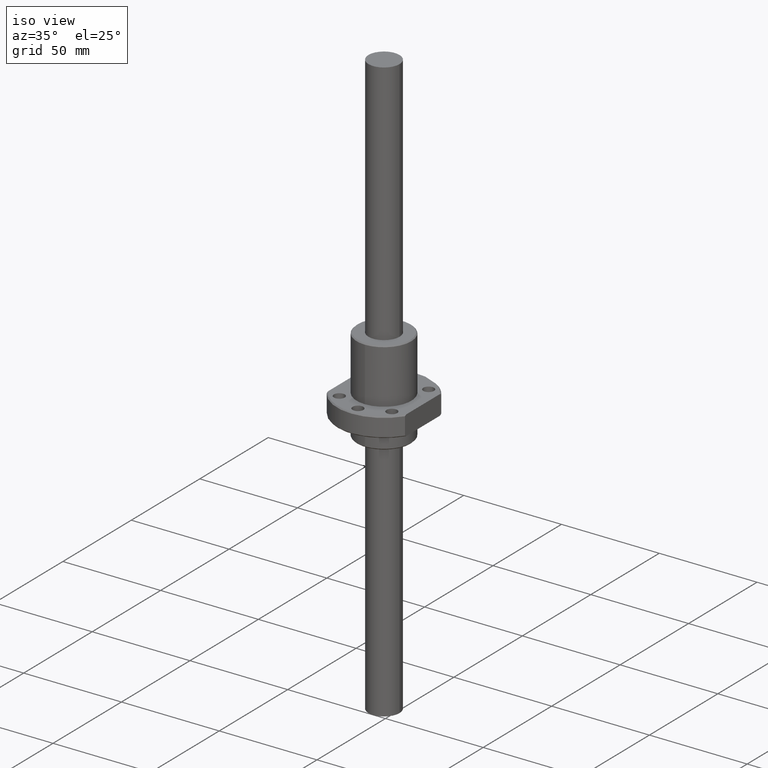
[diagram: clean part render]
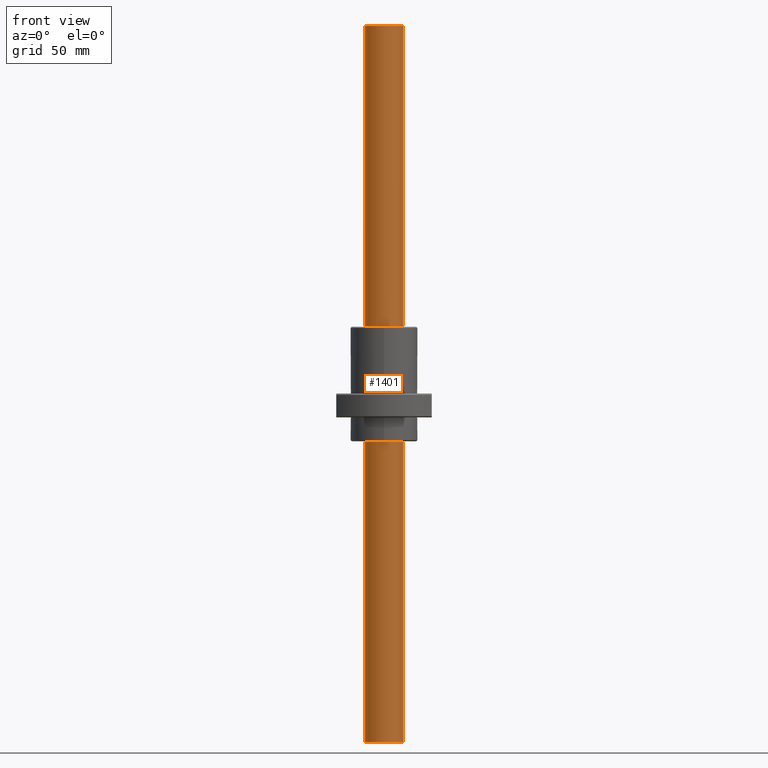
[diagram: tour spotlight — one face highlighted and labeled with its STEP entity id]
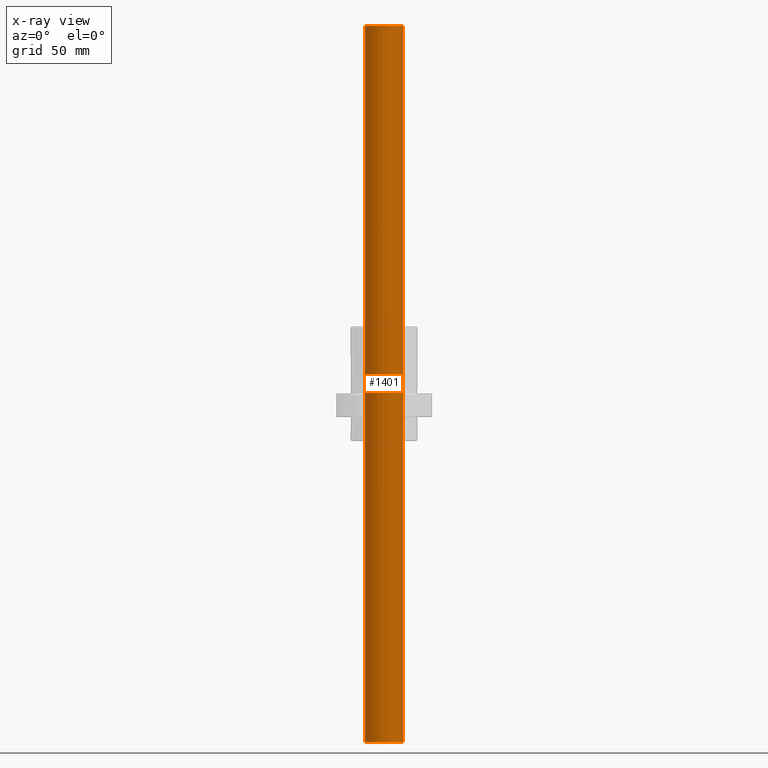
[diagram: x-ray of the same camera — body ghosted, this tour face saturated]
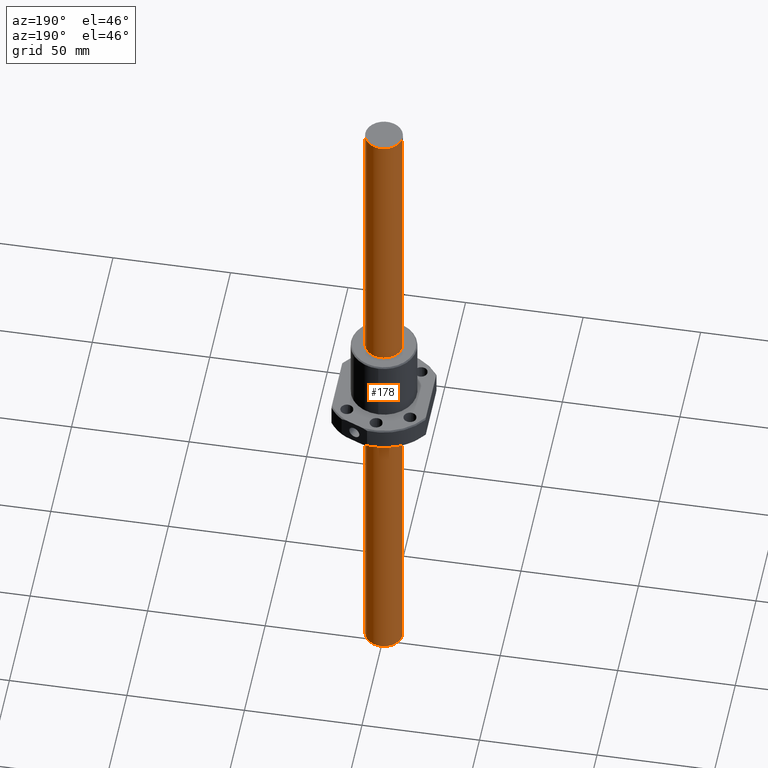
[diagram: tour spotlight — one face highlighted and labeled with its STEP entity id]
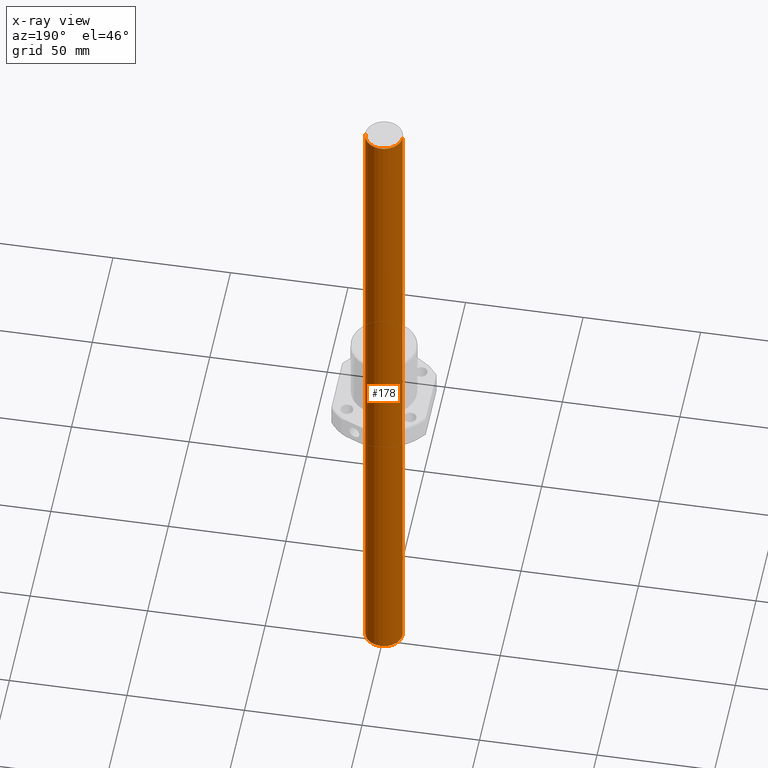
[diagram: x-ray of the same camera — body ghosted, this tour face saturated]
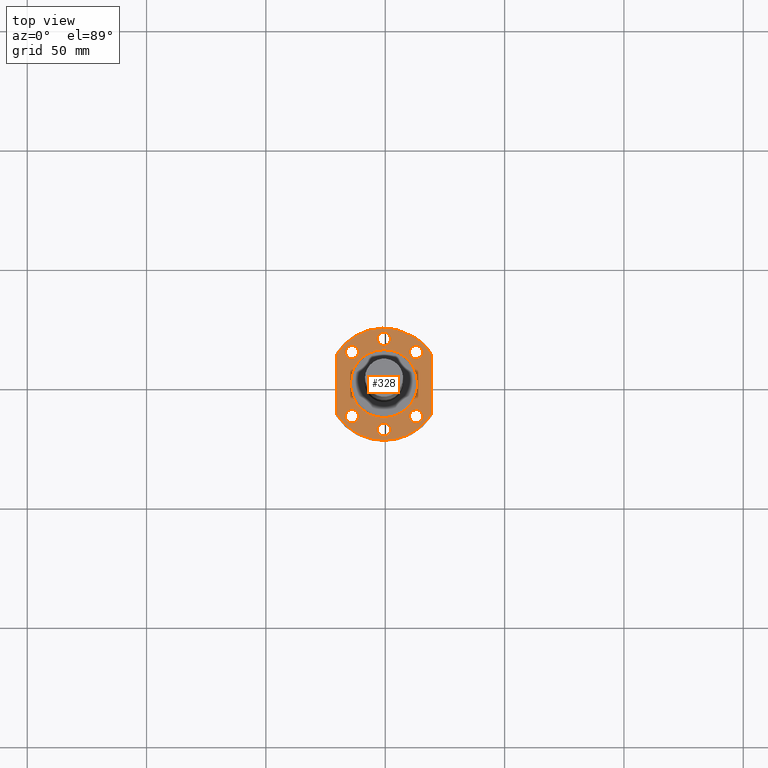
[diagram: tour spotlight — one face highlighted and labeled with its STEP entity id]
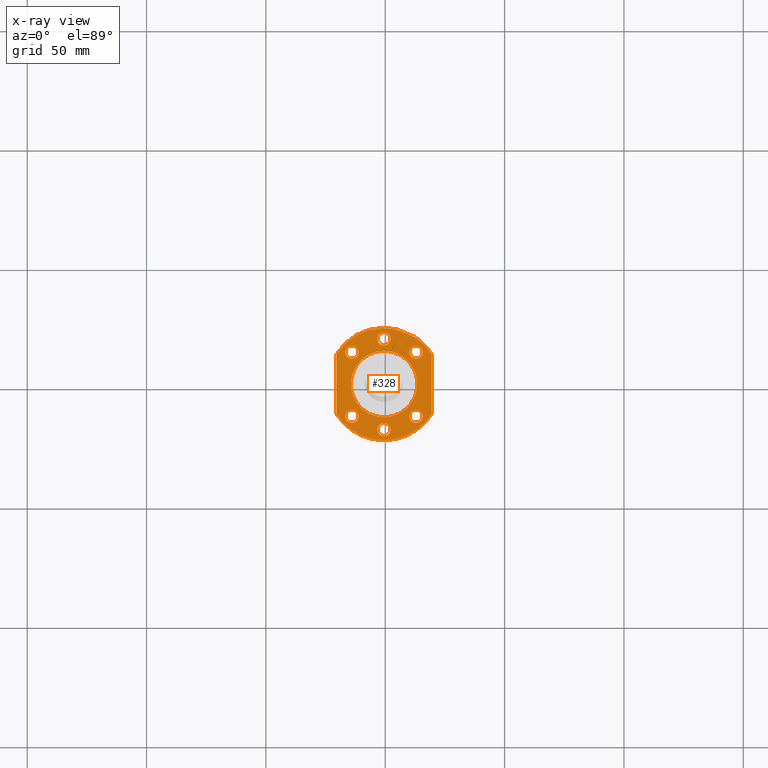
[diagram: x-ray of the same camera — body ghosted, this tour face saturated]
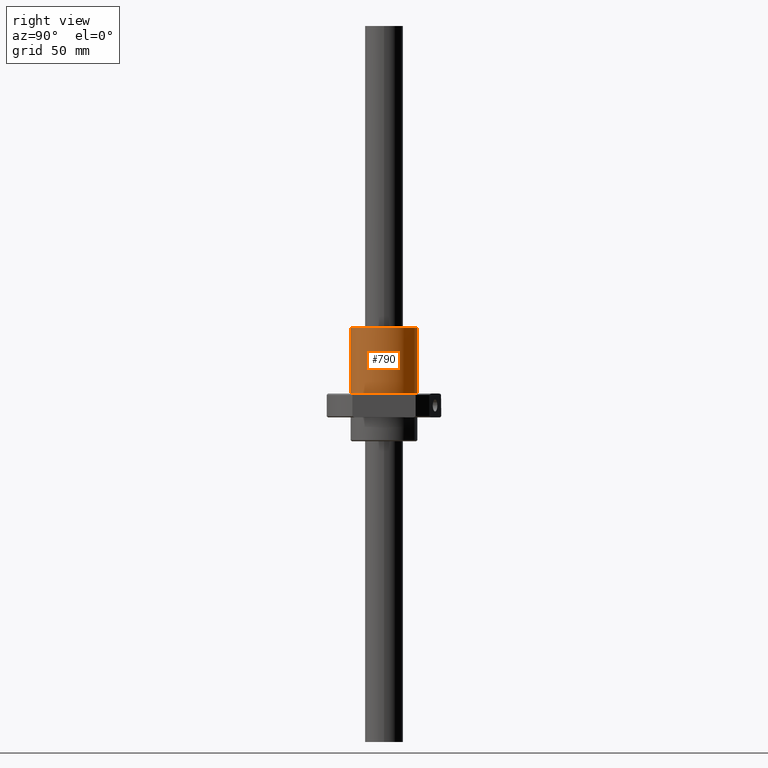
[diagram: tour spotlight — one face highlighted and labeled with its STEP entity id]
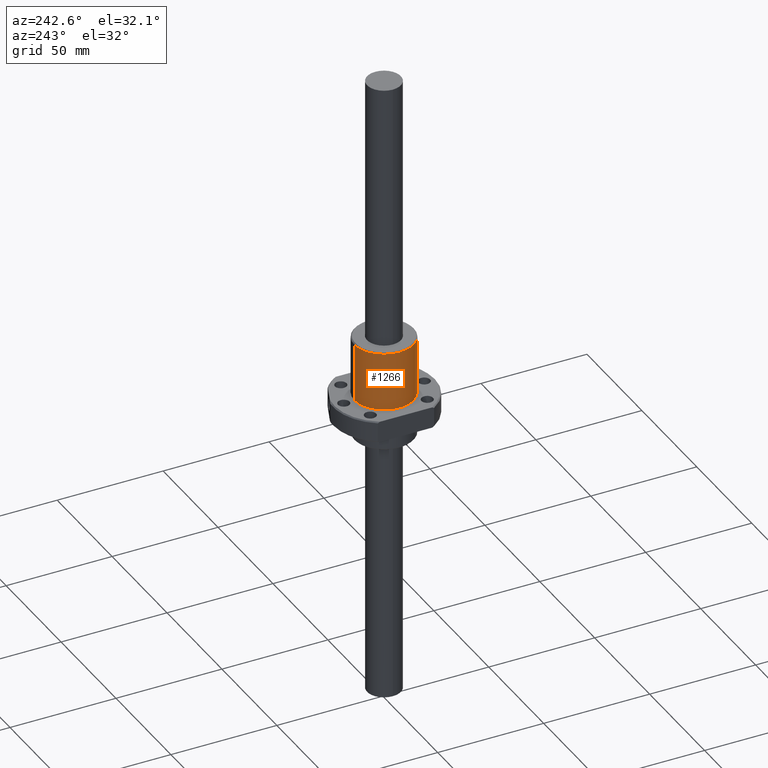
[diagram: tour spotlight — one face highlighted and labeled with its STEP entity id]
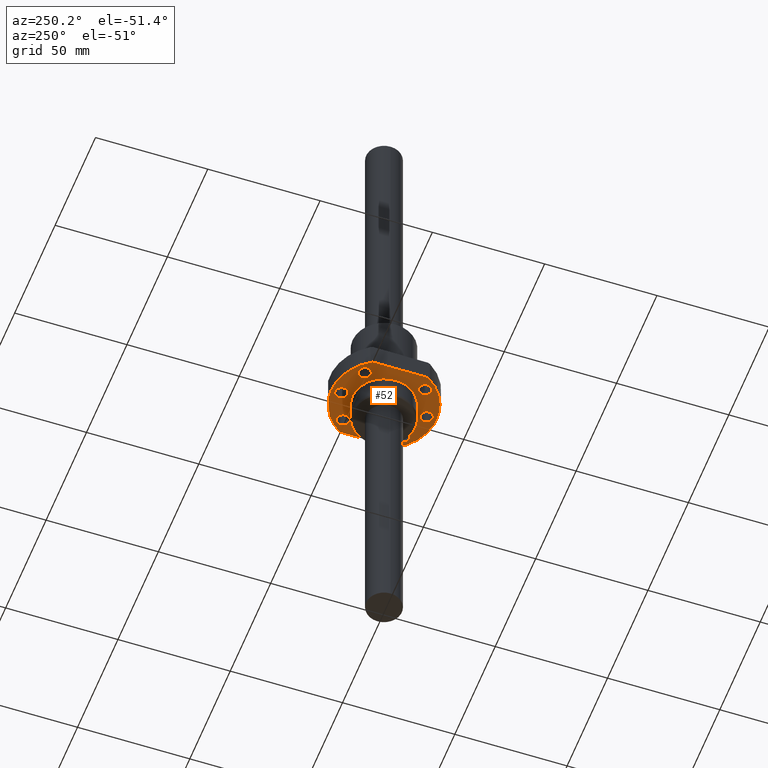
[diagram: tour spotlight — one face highlighted and labeled with its STEP entity id]
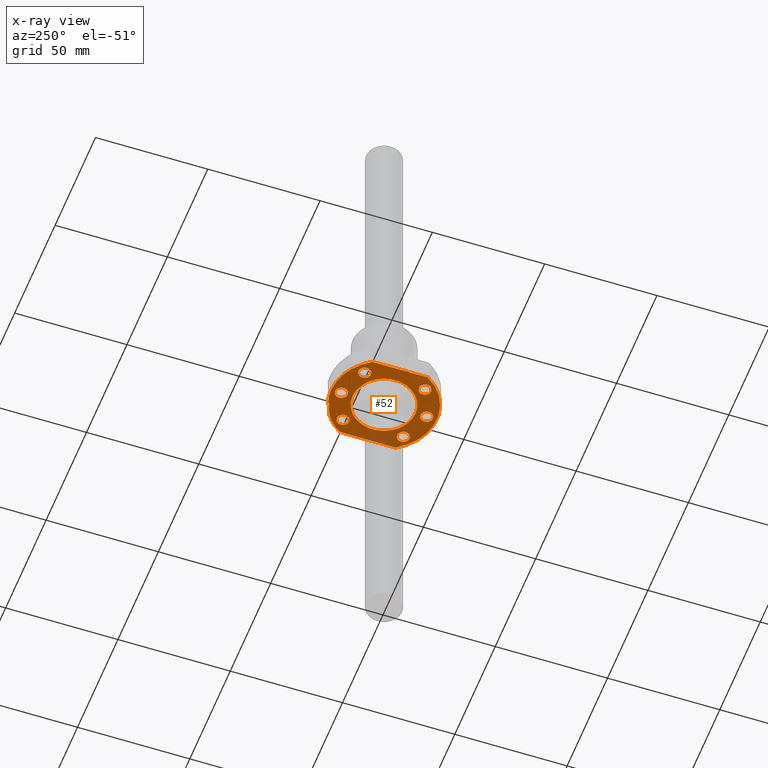
[diagram: x-ray of the same camera — body ghosted, this tour face saturated]
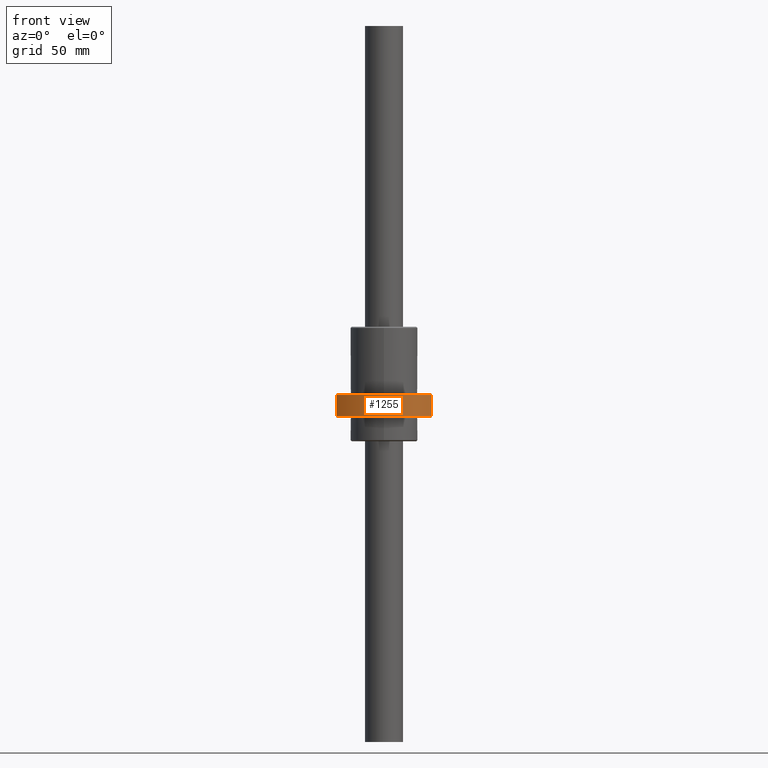
[diagram: tour spotlight — one face highlighted and labeled with its STEP entity id]
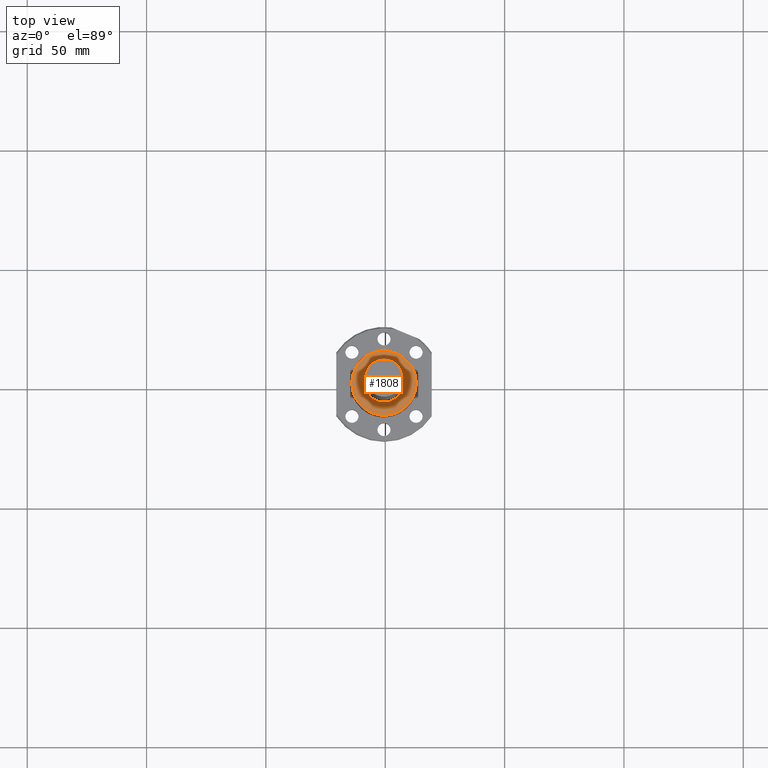
[diagram: tour spotlight — one face highlighted and labeled with its STEP entity id]
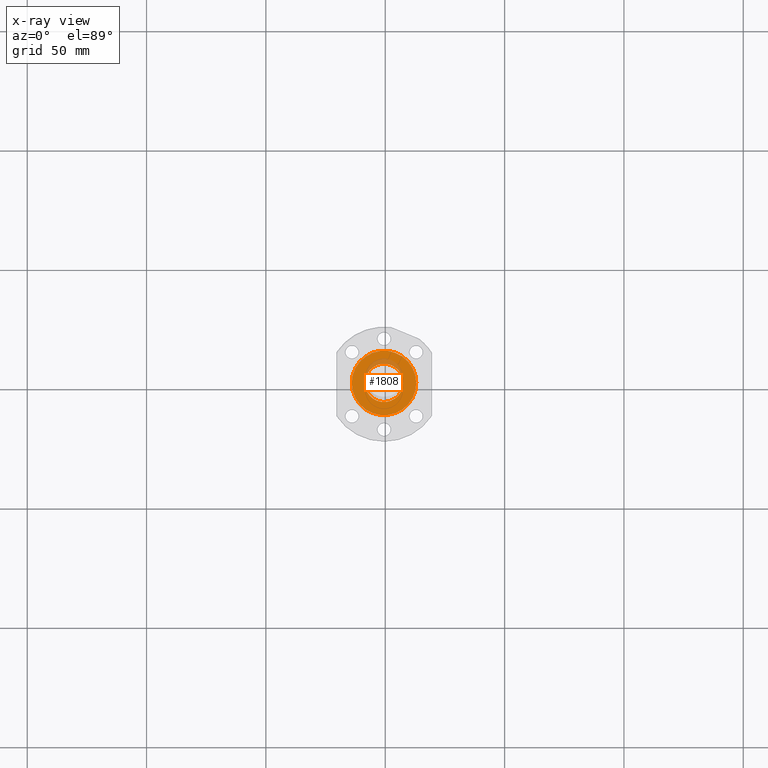
[diagram: x-ray of the same camera — body ghosted, this tour face saturated]
A machine part: a face-by-face anatomy tour. The part has 50 B-rep faces; the first image is the clean iso view, then the 8 largest visible faces are spotlighted one at a time (largest first), each with its STEP entity span.

Face 1 — front view, entity #1401. An x-ray twin of the same camera follows (body ghosted, this face saturated) — the face is partly hidden behind the body. In plain terms, the highlighted cylindrical surface (edge-blend (fillet) strip) has radius 7.95 mm, axis along (0, 0, 1).
Definition (entity closure, byte-faithful):
#4 = CYLINDRICAL_SURFACE ( 'NONE', #316, 7.950000000000000200 ) ;
#78 = EDGE_CURVE ( 'NONE', #1132, #1818, #1817, .T. ) ;
#125 = CARTESIAN_POINT ( 'NONE',  ( -7.950000000000000200, 9.735942053221458900E-016, -300.0000000000000000 ) ) ;
#171 = DIRECTION ( 'NONE',  ( 1.000000000000000000, 0.0000000000000000000, 0.0000000000000000000 ) ) ;
#266 = FACE_OUTER_BOUND ( 'NONE', #427, .T. ) ;
#281 = DIRECTION ( 'NONE',  ( 1.000000000000000000, 0.0000000000000000000, 0.0000000000000000000 ) ) ;
#316 = AXIS2_PLACEMENT_3D ( 'NONE', #722, #1179, #281 ) ;
#374 = CARTESIAN_POINT ( 'NONE',  ( 0.0000000000000000000, 0.0000000000000000000, -300.0000000000000000 ) ) ;
#387 = CARTESIAN_POINT ( 'NONE',  ( 0.0000000000000000000, 0.0000000000000000000, 0.0000000000000000000 ) ) ;
#412 = VECTOR ( 'NONE', #1278, 1000.000000000000000 ) ;
#427 = EDGE_LOOP ( 'NONE', ( #1029, #1903, #1774, #1723 ) ) ;
#551 = CIRCLE ( 'NONE', #664, 7.950000000000000200 ) ;
#563 = DIRECTION ( 'NONE',  ( -0.0000000000000000000, 0.0000000000000000000, -1.000000000000000000 ) ) ;
#582 = VECTOR ( 'NONE', #1461, 1000.000000000000000 ) ;
#664 = AXIS2_PLACEMENT_3D ( 'NONE', #374, #563, #171 ) ;
#669 = CIRCLE ( 'NONE', #1188, 7.950000000000000200 ) ;
#722 = CARTESIAN_POINT ( 'NONE',  ( 0.0000000000000000000, 0.0000000000000000000, -300.0000000000000000 ) ) ;
#812 = EDGE_CURVE ( 'NONE', #1870, #1814, #1858, .T. ) ;
#1029 = ORIENTED_EDGE ( 'NONE', *, *, #78, .F. ) ;
#1070 = EDGE_CURVE ( 'NONE', #1818, #1814, #669, .T. ) ;
#1132 = VERTEX_POINT ( 'NONE', #1793 ) ;
#1179 = DIRECTION ( 'NONE',  ( 0.0000000000000000000, -0.0000000000000000000, 1.000000000000000000 ) ) ;
#1188 = AXIS2_PLACEMENT_3D ( 'NONE', #387, #1936, #1341 ) ;
#1278 = DIRECTION ( 'NONE',  ( 0.0000000000000000000, -0.0000000000000000000, 1.000000000000000000 ) ) ;
#1341 = DIRECTION ( 'NONE',  ( 1.000000000000000000, 0.0000000000000000000, 0.0000000000000000000 ) ) ;
#1401 = ADVANCED_FACE ( 'NONE', ( #266 ), #4, .T. ) ;
#1461 = DIRECTION ( 'NONE',  ( 0.0000000000000000000, -0.0000000000000000000, 1.000000000000000000 ) ) ;
#1485 = CARTESIAN_POINT ( 'NONE',  ( 7.950000000000000200, 0.0000000000000000000, -300.0000000000000000 ) ) ;
#1502 = EDGE_CURVE ( 'NONE', #1870, #1132, #551, .T. ) ;
#1654 = CARTESIAN_POINT ( 'NONE',  ( 7.950000000000000200, 0.0000000000000000000, -300.0000000000000000 ) ) ;
#1723 = ORIENTED_EDGE ( 'NONE', *, *, #1070, .F. ) ;
#1774 = ORIENTED_EDGE ( 'NONE', *, *, #812, .T. ) ;
#1782 = CARTESIAN_POINT ( 'NONE',  ( -7.950000000000000200, 9.735942053221458900E-016, 0.0000000000000000000 ) ) ;
#1793 = CARTESIAN_POINT ( 'NONE',  ( -7.950000000000000200, 9.735942053221458900E-016, -300.0000000000000000 ) ) ;
#1814 = VERTEX_POINT ( 'NONE', #1832 ) ;
#1817 = LINE ( 'NONE', #125, #412 ) ;
#1818 = VERTEX_POINT ( 'NONE', #1782 ) ;
#1832 = CARTESIAN_POINT ( 'NONE',  ( 7.950000000000000200, 0.0000000000000000000, 0.0000000000000000000 ) ) ;
#1858 = LINE ( 'NONE', #1654, #582 ) ;
#1870 = VERTEX_POINT ( 'NONE', #1485 ) ;
#1903 = ORIENTED_EDGE ( 'NONE', *, *, #1502, .F. ) ;
#1936 = DIRECTION ( 'NONE',  ( 0.0000000000000000000, -0.0000000000000000000, 1.000000000000000000 ) ) ;

Face 2 — auxiliary view, entity #178. An x-ray twin of the same camera follows (body ghosted, this face saturated) — the face is partly hidden behind the body. In plain terms, the highlighted cylindrical surface (edge-blend (fillet) strip) has radius 7.95 mm, axis along (0, 0, 1).
Definition (entity closure, byte-faithful):
#78 = EDGE_CURVE ( 'NONE', #1132, #1818, #1817, .T. ) ;
#91 = AXIS2_PLACEMENT_3D ( 'NONE', #1067, #679, #857 ) ;
#114 = CYLINDRICAL_SURFACE ( 'NONE', #158, 7.950000000000000200 ) ;
#125 = CARTESIAN_POINT ( 'NONE',  ( -7.950000000000000200, 9.735942053221458900E-016, -300.0000000000000000 ) ) ;
#158 = AXIS2_PLACEMENT_3D ( 'NONE', #866, #1641, #1232 ) ;
#178 = ADVANCED_FACE ( 'NONE', ( #315 ), #114, .T. ) ;
#196 = ORIENTED_EDGE ( 'NONE', *, *, #1540, .F. ) ;
#258 = CIRCLE ( 'NONE', #849, 7.950000000000000200 ) ;
#313 = ORIENTED_EDGE ( 'NONE', *, *, #909, .F. ) ;
#315 = FACE_OUTER_BOUND ( 'NONE', #1778, .T. ) ;
#412 = VECTOR ( 'NONE', #1278, 1000.000000000000000 ) ;
#421 = ORIENTED_EDGE ( 'NONE', *, *, #78, .T. ) ;
#467 = ORIENTED_EDGE ( 'NONE', *, *, #812, .F. ) ;
#572 = DIRECTION ( 'NONE',  ( 1.000000000000000000, 0.0000000000000000000, 0.0000000000000000000 ) ) ;
#582 = VECTOR ( 'NONE', #1461, 1000.000000000000000 ) ;
#679 = DIRECTION ( 'NONE',  ( -0.0000000000000000000, 0.0000000000000000000, -1.000000000000000000 ) ) ;
#729 = CARTESIAN_POINT ( 'NONE',  ( 0.0000000000000000000, 0.0000000000000000000, 0.0000000000000000000 ) ) ;
#812 = EDGE_CURVE ( 'NONE', #1870, #1814, #1858, .T. ) ;
#849 = AXIS2_PLACEMENT_3D ( 'NONE', #729, #1435, #572 ) ;
#857 = DIRECTION ( 'NONE',  ( 1.000000000000000000, 0.0000000000000000000, 0.0000000000000000000 ) ) ;
#866 = CARTESIAN_POINT ( 'NONE',  ( 0.0000000000000000000, 0.0000000000000000000, -300.0000000000000000 ) ) ;
#909 = EDGE_CURVE ( 'NONE', #1132, #1870, #1163, .T. ) ;
#1067 = CARTESIAN_POINT ( 'NONE',  ( 0.0000000000000000000, 0.0000000000000000000, -300.0000000000000000 ) ) ;
#1132 = VERTEX_POINT ( 'NONE', #1793 ) ;
#1163 = CIRCLE ( 'NONE', #91, 7.950000000000000200 ) ;
#1232 = DIRECTION ( 'NONE',  ( 1.000000000000000000, 0.0000000000000000000, 0.0000000000000000000 ) ) ;
#1278 = DIRECTION ( 'NONE',  ( 0.0000000000000000000, -0.0000000000000000000, 1.000000000000000000 ) ) ;
#1435 = DIRECTION ( 'NONE',  ( 0.0000000000000000000, -0.0000000000000000000, 1.000000000000000000 ) ) ;
#1461 = DIRECTION ( 'NONE',  ( 0.0000000000000000000, -0.0000000000000000000, 1.000000000000000000 ) ) ;
#1485 = CARTESIAN_POINT ( 'NONE',  ( 7.950000000000000200, 0.0000000000000000000, -300.0000000000000000 ) ) ;
#1540 = EDGE_CURVE ( 'NONE', #1814, #1818, #258, .T. ) ;
#1641 = DIRECTION ( 'NONE',  ( 0.0000000000000000000, -0.0000000000000000000, 1.000000000000000000 ) ) ;
#1654 = CARTESIAN_POINT ( 'NONE',  ( 7.950000000000000200, 0.0000000000000000000, -300.0000000000000000 ) ) ;
#1778 = EDGE_LOOP ( 'NONE', ( #313, #421, #196, #467 ) ) ;
#1782 = CARTESIAN_POINT ( 'NONE',  ( -7.950000000000000200, 9.735942053221458900E-016, 0.0000000000000000000 ) ) ;
#1793 = CARTESIAN_POINT ( 'NONE',  ( -7.950000000000000200, 9.735942053221458900E-016, -300.0000000000000000 ) ) ;
#1814 = VERTEX_POINT ( 'NONE', #1832 ) ;
#1817 = LINE ( 'NONE', #125, #412 ) ;
#1818 = VERTEX_POINT ( 'NONE', #1782 ) ;
#1832 = CARTESIAN_POINT ( 'NONE',  ( 7.950000000000000200, 0.0000000000000000000, 0.0000000000000000000 ) ) ;
#1858 = LINE ( 'NONE', #1654, #582 ) ;
#1870 = VERTEX_POINT ( 'NONE', #1485 ) ;

Face 3 — top view, entity #328. An x-ray twin of the same camera follows (body ghosted, this face saturated) — the face is partly hidden behind the body. In plain terms, the highlighted planar face has unit normal (0, 0, 1).
Definition (entity closure, byte-faithful):
#9 = VERTEX_POINT ( 'NONE', #168 ) ;
#25 = EDGE_CURVE ( 'NONE', #964, #1685, #1581, .T. ) ;
#35 = AXIS2_PLACEMENT_3D ( 'NONE', #1227, #428, #390 ) ;
#38 = EDGE_CURVE ( 'NONE', #164, #359, #1882, .T. ) ;
#40 = VERTEX_POINT ( 'NONE', #1194 ) ;
#63 = EDGE_LOOP ( 'NONE', ( #601, #1634 ) ) ;
#66 = DIRECTION ( 'NONE',  ( -0.0000000000000000000, 7.381802025433221500E-017, -1.000000000000000000 ) ) ;
#74 = CIRCLE ( 'NONE', #599, 2.749999999999999100 ) ;
#81 = ORIENTED_EDGE ( 'NONE', *, *, #1384, .T. ) ;
#101 = CIRCLE ( 'NONE', #1190, 23.50000000000000000 ) ;
#110 = ORIENTED_EDGE ( 'NONE', *, *, #779, .T. ) ;
#121 = ORIENTED_EDGE ( 'NONE', *, *, #881, .T. ) ;
#123 = CARTESIAN_POINT ( 'NONE',  ( 3.367778697655226400E-016, 21.74995980400000000, -20.00000000000000000 ) ) ;
#142 = CIRCLE ( 'NONE', #835, 2.750000000000000900 ) ;
#156 = DIRECTION ( 'NONE',  ( -1.000000000000000000, 0.0000000000000000000, 0.0000000000000000000 ) ) ;
#164 = VERTEX_POINT ( 'NONE', #686 ) ;
#168 = CARTESIAN_POINT ( 'NONE',  ( 0.0000000000000000000, -21.74995980400000000, -20.00000000000000400 ) ) ;
#181 = EDGE_CURVE ( 'NONE', #1681, #244, #1736, .T. ) ;
#203 = EDGE_CURVE ( 'NONE', #855, #250, #1430, .T. ) ;
#220 = CARTESIAN_POINT ( 'NONE',  ( -5.125887886921658400, 22.93415081018064000, -19.99999999971490500 ) ) ;
#236 = CIRCLE ( 'NONE', #375, 14.00000000000000000 ) ;
#244 = VERTEX_POINT ( 'NONE', #846 ) ;
#245 = VECTOR ( 'NONE', #1309, 1000.000000000000100 ) ;
#250 = VERTEX_POINT ( 'NONE', #1259 ) ;
#259 = AXIS2_PLACEMENT_3D ( 'NONE', #287, #630, #432 ) ;
#272 = AXIS2_PLACEMENT_3D ( 'NONE', #1545, #1346, #927 ) ;
#280 = DIRECTION ( 'NONE',  ( 0.0000000000000000000, -1.000000000000000000, -1.261617073437677500E-015 ) ) ;
#283 = CARTESIAN_POINT ( 'NONE',  ( 20.00000000000000000, 12.33896268198936000, -19.99999999856327500 ) ) ;
#287 = CARTESIAN_POINT ( 'NONE',  ( 0.0000000000000000000, -6.814985084194600700E-015, -20.00000000000000000 ) ) ;
#297 = DIRECTION ( 'NONE',  ( 0.0000000000000000000, -6.308085367188387300E-016, 1.000000000000000000 ) ) ;
#323 = DIRECTION ( 'NONE',  ( 0.0000000000000000000, -6.308085367188387300E-016, 1.000000000000000000 ) ) ;
#325 = EDGE_CURVE ( 'NONE', #250, #855, #680, .T. ) ;
#326 = ORIENTED_EDGE ( 'NONE', *, *, #1214, .T. ) ;
#328 = ADVANCED_FACE ( 'NONE', ( #1725, #1772, #562, #516, #720, #1016, #1066, #1171 ), #1313, .T. ) ;
#330 = CARTESIAN_POINT ( 'NONE',  ( 13.43500042000000100, 10.68500042000000000, -20.00000000000000400 ) ) ;
#340 = EDGE_CURVE ( 'NONE', #1926, #1531, #521, .T. ) ;
#350 = DIRECTION ( 'NONE',  ( 1.776356839400250500E-015, -1.000000000000000000, 0.0000000000000000000 ) ) ;
#359 = VERTEX_POINT ( 'NONE', #123 ) ;
#362 = EDGE_CURVE ( 'NONE', #359, #164, #517, .T. ) ;
#369 = ORIENTED_EDGE ( 'NONE', *, *, #181, .T. ) ;
#372 = DIRECTION ( 'NONE',  ( 0.0000000000000000000, -1.000000000000000000, -1.261617073437677500E-015 ) ) ;
#375 = AXIS2_PLACEMENT_3D ( 'NONE', #776, #1186, #870 ) ;
#378 = CIRCLE ( 'NONE', #1709, 23.50000000000000000 ) ;
#382 = CARTESIAN_POINT ( 'NONE',  ( -13.43500042000000100, 10.68500042000000000, -20.00000000000000400 ) ) ;
#385 = EDGE_CURVE ( 'NONE', #9, #1428, #74, .T. ) ;
#388 = DIRECTION ( 'NONE',  ( 0.0000000000000000000, -6.308085367188388300E-016, 1.000000000000000000 ) ) ;
#390 = DIRECTION ( 'NONE',  ( 0.0000000000000000000, -1.000000000000000000, -1.261617073437677500E-015 ) ) ;
#404 = CARTESIAN_POINT ( 'NONE',  ( 13.43500042000000100, -13.43500042000000100, -20.00000000000000000 ) ) ;
#409 = DIRECTION ( 'NONE',  ( 0.0000000000000000000, -1.000000000000000000, -1.476360405086644300E-016 ) ) ;
#428 = DIRECTION ( 'NONE',  ( 0.0000000000000000000, -6.308085367188389300E-016, 1.000000000000000000 ) ) ;
#432 = DIRECTION ( 'NONE',  ( 0.0000000000000000000, -1.000000000000000000, -2.478176394252581600E-016 ) ) ;
#454 = ORIENTED_EDGE ( 'NONE', *, *, #1722, .F. ) ;
#478 = DIRECTION ( 'NONE',  ( 0.0000000000000000000, -1.000000000000000000, -1.261617073437678200E-015 ) ) ;
#484 = EDGE_CURVE ( 'NONE', #856, #40, #378, .T. ) ;
#494 = EDGE_CURVE ( 'NONE', #1639, #613, #985, .T. ) ;
#513 = CARTESIAN_POINT ( 'NONE',  ( 0.0000000000000000000, 18.99995980400000000, -20.00000000000000000 ) ) ;
#516 = FACE_BOUND ( 'NONE', #612, .T. ) ;
#517 = CIRCLE ( 'NONE', #1005, 2.749999999999999100 ) ;
#518 = AXIS2_PLACEMENT_3D ( 'NONE', #1333, #1169, #963 ) ;
#521 = CIRCLE ( 'NONE', #808, 23.49999999999998200 ) ;
#533 = DIRECTION ( 'NONE',  ( 0.0000000000000000000, 1.000000000000000000, 0.0000000000000000000 ) ) ;
#561 = DIRECTION ( 'NONE',  ( 0.0000000000000000000, -6.308085367188388300E-016, 1.000000000000000000 ) ) ;
#562 = FACE_BOUND ( 'NONE', #63, .T. ) ;
#577 = CIRCLE ( 'NONE', #1017, 2.750000000000000900 ) ;
#590 = EDGE_CURVE ( 'NONE', #1072, #1926, #1344, .T. ) ;
#599 = AXIS2_PLACEMENT_3D ( 'NONE', #1356, #1151, #939 ) ;
#601 = ORIENTED_EDGE ( 'NONE', *, *, #325, .T. ) ;
#603 = CARTESIAN_POINT ( 'NONE',  ( 0.0000000000000000000, 18.99995980400000000, -20.00000000000000000 ) ) ;
#612 = EDGE_LOOP ( 'NONE', ( #81, #782 ) ) ;
#613 = VERTEX_POINT ( 'NONE', #382 ) ;
#616 = CARTESIAN_POINT ( 'NONE',  ( 13.43500042000000100, 13.43500042000000100, -20.00000000000000000 ) ) ;
#625 = ORIENTED_EDGE ( 'NONE', *, *, #38, .T. ) ;
#630 = DIRECTION ( 'NONE',  ( 0.0000000000000000000, -2.478176394252582100E-016, 1.000000000000000000 ) ) ;
#639 = EDGE_LOOP ( 'NONE', ( #753, #1616 ) ) ;
#643 = VERTEX_POINT ( 'NONE', #283 ) ;
#659 = DIRECTION ( 'NONE',  ( 0.0000000000000000000, -1.000000000000000000, 0.0000000000000000000 ) ) ;
#675 = AXIS2_PLACEMENT_3D ( 'NONE', #1513, #743, #156 ) ;
#680 = CIRCLE ( 'NONE', #1821, 2.750000000000000900 ) ;
#686 = CARTESIAN_POINT ( 'NONE',  ( 0.0000000000000000000, 16.24995980400000000, -20.00000000000000000 ) ) ;
#689 = CIRCLE ( 'NONE', #518, 2.750000000000000900 ) ;
#691 = ORIENTED_EDGE ( 'NONE', *, *, #590, .T. ) ;
#694 = ORIENTED_EDGE ( 'NONE', *, *, #1852, .T. ) ;
#706 = CARTESIAN_POINT ( 'NONE',  ( -13.43500042000000100, -13.43500042000000100, -20.00000000000000000 ) ) ;
#707 = ORIENTED_EDGE ( 'NONE', *, *, #340, .T. ) ;
#720 = FACE_BOUND ( 'NONE', #1170, .T. ) ;
#743 = DIRECTION ( 'NONE',  ( 0.0000000000000000000, 0.0000000000000000000, -1.000000000000000000 ) ) ;
#753 = ORIENTED_EDGE ( 'NONE', *, *, #385, .T. ) ;
#776 = CARTESIAN_POINT ( 'NONE',  ( 0.0000000000000000000, -6.814985084194600700E-015, -20.00000000000000000 ) ) ;
#779 = EDGE_CURVE ( 'NONE', #40, #1072, #101, .T. ) ;
#782 = ORIENTED_EDGE ( 'NONE', *, *, #494, .T. ) ;
#787 = CARTESIAN_POINT ( 'NONE',  ( 0.0000000000000000000, 1.405509010645093800E-030, -20.00000000000001800 ) ) ;
#793 = EDGE_LOOP ( 'NONE', ( #1155, #902 ) ) ;
#808 = AXIS2_PLACEMENT_3D ( 'NONE', #1916, #1415, #1945 ) ;
#813 = CARTESIAN_POINT ( 'NONE',  ( 13.43500042000000100, -16.18500042000000100, -20.00000000000000400 ) ) ;
#814 = CARTESIAN_POINT ( 'NONE',  ( 13.43500042000000100, -13.43500042000000100, -20.00000000000000000 ) ) ;
#832 = CIRCLE ( 'NONE', #1343, 23.49999999999998200 ) ;
#835 = AXIS2_PLACEMENT_3D ( 'NONE', #1437, #1061, #1277 ) ;
#846 = CARTESIAN_POINT ( 'NONE',  ( 0.0000000000000000000, -14.00000000000000700, -20.00000000000000400 ) ) ;
#855 = VERTEX_POINT ( 'NONE', #1249 ) ;
#856 = VERTEX_POINT ( 'NONE', #1043 ) ;
#870 = DIRECTION ( 'NONE',  ( 0.0000000000000000000, -1.000000000000000000, -2.478176394252581600E-016 ) ) ;
#881 = EDGE_CURVE ( 'NONE', #1314, #643, #832, .T. ) ;
#885 = LINE ( 'NONE', #1096, #245 ) ;
#889 = DIRECTION ( 'NONE',  ( 0.0000000000000000000, -6.308085367188388300E-016, 1.000000000000000000 ) ) ;
#890 = EDGE_LOOP ( 'NONE', ( #326, #694 ) ) ;
#902 = ORIENTED_EDGE ( 'NONE', *, *, #1836, .T. ) ;
#921 = CARTESIAN_POINT ( 'NONE',  ( -20.00000000000000000, -12.33896268425371500, -19.99999999737434600 ) ) ;
#927 = DIRECTION ( 'NONE',  ( 0.0000000000000000000, -1.000000000000000000, -1.261617073437677500E-015 ) ) ;
#939 = DIRECTION ( 'NONE',  ( 0.0000000000000000000, -1.000000000000000000, -1.261617073437678200E-015 ) ) ;
#954 = EDGE_CURVE ( 'NONE', #1428, #9, #957, .T. ) ;
#957 = CIRCLE ( 'NONE', #1272, 2.749999999999999100 ) ;
#963 = DIRECTION ( 'NONE',  ( 0.0000000000000000000, -1.000000000000000000, -1.261617073437677500E-015 ) ) ;
#964 = VERTEX_POINT ( 'NONE', #813 ) ;
#968 = AXIS2_PLACEMENT_3D ( 'NONE', #616, #1350, #1551 ) ;
#985 = CIRCLE ( 'NONE', #35, 2.750000000000000900 ) ;
#997 = DIRECTION ( 'NONE',  ( -0.0000000000000000000, 7.381802025433221500E-017, -1.000000000000000000 ) ) ;
#1005 = AXIS2_PLACEMENT_3D ( 'NONE', #513, #323, #659 ) ;
#1016 = FACE_BOUND ( 'NONE', #890, .T. ) ;
#1017 = AXIS2_PLACEMENT_3D ( 'NONE', #814, #388, #280 ) ;
#1026 = CARTESIAN_POINT ( 'NONE',  ( 0.0000000000000000000, -6.723624292040281200E-032, -20.00000000000000000 ) ) ;
#1043 = CARTESIAN_POINT ( 'NONE',  ( 20.00000000000000000, -12.33896268255248300, -19.99999999826760100 ) ) ;
#1061 = DIRECTION ( 'NONE',  ( 0.0000000000000000000, -6.308085367188389300E-016, 1.000000000000000000 ) ) ;
#1066 = FACE_BOUND ( 'NONE', #1114, .T. ) ;
#1072 = VERTEX_POINT ( 'NONE', #921 ) ;
#1086 = DIRECTION ( 'NONE',  ( 0.0000000000000000000, -1.000000000000000000, 0.0000000000000000000 ) ) ;
#1096 = CARTESIAN_POINT ( 'NONE',  ( -8.859115680499998600, 21.38779722700000400, -20.00000000000000000 ) ) ;
#1101 = DIRECTION ( 'NONE',  ( 0.0000000000000000000, -1.000000000000000000, -1.261617073437677500E-015 ) ) ;
#1108 = CARTESIAN_POINT ( 'NONE',  ( -13.43500042000000100, 16.18500042000000100, -20.00000000000000000 ) ) ;
#1114 = EDGE_LOOP ( 'NONE', ( #1951, #369 ) ) ;
#1137 = CARTESIAN_POINT ( 'NONE',  ( -12.59234346950288400, 19.84144364571458800, -20.00000000000001100 ) ) ;
#1138 = DIRECTION ( 'NONE',  ( 8.881784197001252300E-016, -1.000000000000000000, -1.476360405086644300E-016 ) ) ;
#1144 = CARTESIAN_POINT ( 'NONE',  ( 13.43500042000000100, -10.68500042000000000, -20.00000000000000000 ) ) ;
#1151 = DIRECTION ( 'NONE',  ( 0.0000000000000000000, -6.308085367188390200E-016, 1.000000000000000000 ) ) ;
#1155 = ORIENTED_EDGE ( 'NONE', *, *, #25, .T. ) ;
#1159 = DIRECTION ( 'NONE',  ( -0.0000000000000000000, -1.000000000000000000, -0.0000000000000000000 ) ) ;
#1167 = LINE ( 'NONE', #1363, #1267 ) ;
#1169 = DIRECTION ( 'NONE',  ( 0.0000000000000000000, -6.308085367188389300E-016, 1.000000000000000000 ) ) ;
#1170 = EDGE_LOOP ( 'NONE', ( #625, #1607 ) ) ;
#1171 = FACE_OUTER_BOUND ( 'NONE', #1365, .T. ) ;
#1186 = DIRECTION ( 'NONE',  ( 0.0000000000000000000, -2.478176394252582100E-016, 1.000000000000000000 ) ) ;
#1190 = AXIS2_PLACEMENT_3D ( 'NONE', #1820, #66, #409 ) ;
#1194 = CARTESIAN_POINT ( 'NONE',  ( 0.0000000000000000000, -23.50000000000000000, -20.00000000000000400 ) ) ;
#1214 = EDGE_CURVE ( 'NONE', #1292, #1246, #1872, .T. ) ;
#1227 = CARTESIAN_POINT ( 'NONE',  ( -13.43500042000000100, 13.43500042000000100, -20.00000000000000000 ) ) ;
#1231 = EDGE_CURVE ( 'NONE', #244, #1681, #236, .T. ) ;
#1246 = VERTEX_POINT ( 'NONE', #1912 ) ;
#1249 = CARTESIAN_POINT ( 'NONE',  ( -13.43500042000000100, -10.68500042000000000, -20.00000000000000000 ) ) ;
#1259 = CARTESIAN_POINT ( 'NONE',  ( -13.43500042000000100, -16.18500042000000100, -20.00000000000000400 ) ) ;
#1260 = ORIENTED_EDGE ( 'NONE', *, *, #1544, .T. ) ;
#1267 = VECTOR ( 'NONE', #1159, 1000.000000000000000 ) ;
#1271 = AXIS2_PLACEMENT_3D ( 'NONE', #603, #297, #1086 ) ;
#1272 = AXIS2_PLACEMENT_3D ( 'NONE', #1546, #1750, #478 ) ;
#1277 = DIRECTION ( 'NONE',  ( 0.0000000000000000000, -1.000000000000000000, -1.261617073437677500E-015 ) ) ;
#1292 = VERTEX_POINT ( 'NONE', #330 ) ;
#1309 = DIRECTION ( 'NONE',  ( -0.9238795325417087400, -0.3826834322916444800, 0.0000000000000000000 ) ) ;
#1313 = PLANE ( 'NONE',  #675 ) ;
#1314 = VERTEX_POINT ( 'NONE', #220 ) ;
#1325 = AXIS2_PLACEMENT_3D ( 'NONE', #404, #561, #372 ) ;
#1333 = CARTESIAN_POINT ( 'NONE',  ( -13.43500042000000100, 13.43500042000000100, -20.00000000000000000 ) ) ;
#1343 = AXIS2_PLACEMENT_3D ( 'NONE', #787, #997, #350 ) ;
#1344 = LINE ( 'NONE', #1495, #1943 ) ;
#1346 = DIRECTION ( 'NONE',  ( 0.0000000000000000000, -6.308085367188388300E-016, 1.000000000000000000 ) ) ;
#1350 = DIRECTION ( 'NONE',  ( 0.0000000000000000000, -6.308085367188389300E-016, 1.000000000000000000 ) ) ;
#1356 = CARTESIAN_POINT ( 'NONE',  ( 0.0000000000000000000, -18.99995980400000000, -20.00000000000000000 ) ) ;
#1363 = CARTESIAN_POINT ( 'NONE',  ( 20.00000000000000000, 0.0000000000000000000, -20.00000000000000000 ) ) ;
#1365 = EDGE_LOOP ( 'NONE', ( #707, #454, #121, #1260, #1603, #110, #691 ) ) ;
#1384 = EDGE_CURVE ( 'NONE', #613, #1639, #689, .T. ) ;
#1387 = DIRECTION ( 'NONE',  ( -0.0000000000000000000, 7.381802025433221500E-017, -1.000000000000000000 ) ) ;
#1415 = DIRECTION ( 'NONE',  ( -0.0000000000000000000, 7.381802025433221500E-017, -1.000000000000000000 ) ) ;
#1428 = VERTEX_POINT ( 'NONE', #1633 ) ;
#1430 = CIRCLE ( 'NONE', #272, 2.750000000000000900 ) ;
#1437 = CARTESIAN_POINT ( 'NONE',  ( 13.43500042000000100, 13.43500042000000100, -20.00000000000000000 ) ) ;
#1495 = CARTESIAN_POINT ( 'NONE',  ( -20.00000000000000000, 0.0000000000000000000, -20.00000000000000000 ) ) ;
#1513 = CARTESIAN_POINT ( 'NONE',  ( 20.00000000000000000, -23.78199999999999600, -20.00000000000000000 ) ) ;
#1531 = VERTEX_POINT ( 'NONE', #1137 ) ;
#1544 = EDGE_CURVE ( 'NONE', #643, #856, #1167, .T. ) ;
#1545 = CARTESIAN_POINT ( 'NONE',  ( -13.43500042000000100, -13.43500042000000100, -20.00000000000000000 ) ) ;
#1546 = CARTESIAN_POINT ( 'NONE',  ( 0.0000000000000000000, -18.99995980400000000, -20.00000000000000000 ) ) ;
#1550 = CARTESIAN_POINT ( 'NONE',  ( 1.714505518806294600E-015, 13.99999999999999300, -19.99999999999999600 ) ) ;
#1551 = DIRECTION ( 'NONE',  ( 0.0000000000000000000, -1.000000000000000000, -1.261617073437677500E-015 ) ) ;
#1581 = CIRCLE ( 'NONE', #1325, 2.750000000000000900 ) ;
#1603 = ORIENTED_EDGE ( 'NONE', *, *, #484, .T. ) ;
#1607 = ORIENTED_EDGE ( 'NONE', *, *, #362, .T. ) ;
#1616 = ORIENTED_EDGE ( 'NONE', *, *, #954, .T. ) ;
#1633 = CARTESIAN_POINT ( 'NONE',  ( 3.367778697655226400E-016, -16.24995980400000000, -20.00000000000000000 ) ) ;
#1634 = ORIENTED_EDGE ( 'NONE', *, *, #203, .T. ) ;
#1639 = VERTEX_POINT ( 'NONE', #1108 ) ;
#1681 = VERTEX_POINT ( 'NONE', #1550 ) ;
#1685 = VERTEX_POINT ( 'NONE', #1144 ) ;
#1709 = AXIS2_PLACEMENT_3D ( 'NONE', #1026, #1387, #1138 ) ;
#1722 = EDGE_CURVE ( 'NONE', #1314, #1531, #885, .T. ) ;
#1725 = FACE_BOUND ( 'NONE', #793, .T. ) ;
#1736 = CIRCLE ( 'NONE', #259, 14.00000000000000000 ) ;
#1750 = DIRECTION ( 'NONE',  ( 0.0000000000000000000, -6.308085367188390200E-016, 1.000000000000000000 ) ) ;
#1772 = FACE_BOUND ( 'NONE', #639, .T. ) ;
#1788 = CARTESIAN_POINT ( 'NONE',  ( -20.00000000000000000, 12.33896267925304900, -20.00000000000001100 ) ) ;
#1820 = CARTESIAN_POINT ( 'NONE',  ( 0.0000000000000000000, -6.723624292040281200E-032, -20.00000000000000000 ) ) ;
#1821 = AXIS2_PLACEMENT_3D ( 'NONE', #706, #889, #1101 ) ;
#1836 = EDGE_CURVE ( 'NONE', #1685, #964, #577, .T. ) ;
#1852 = EDGE_CURVE ( 'NONE', #1246, #1292, #142, .T. ) ;
#1872 = CIRCLE ( 'NONE', #968, 2.750000000000000900 ) ;
#1882 = CIRCLE ( 'NONE', #1271, 2.749999999999999100 ) ;
#1912 = CARTESIAN_POINT ( 'NONE',  ( 13.43500042000000100, 16.18500042000000100, -20.00000000000000000 ) ) ;
#1916 = CARTESIAN_POINT ( 'NONE',  ( 0.0000000000000000000, 1.347774769818323200E-030, -20.00000000000001800 ) ) ;
#1926 = VERTEX_POINT ( 'NONE', #1788 ) ;
#1943 = VECTOR ( 'NONE', #533, 1000.000000000000000 ) ;
#1945 = DIRECTION ( 'NONE',  ( -1.776356839400250500E-015, -1.000000000000000000, 0.0000000000000000000 ) ) ;
#1951 = ORIENTED_EDGE ( 'NONE', *, *, #1231, .T. ) ;

Face 4 — right view, entity #790. In plain terms, the highlighted cylindrical surface (edge-blend (fillet) strip) has radius 14 mm, axis along (0, -0, -1).
Definition (entity closure, byte-faithful):
#37 = LINE ( 'NONE', #1093, #1359 ) ;
#126 = ORIENTED_EDGE ( 'NONE', *, *, #1676, .F. ) ;
#181 = EDGE_CURVE ( 'NONE', #1681, #244, #1736, .T. ) ;
#244 = VERTEX_POINT ( 'NONE', #846 ) ;
#259 = AXIS2_PLACEMENT_3D ( 'NONE', #287, #630, #432 ) ;
#274 = ORIENTED_EDGE ( 'NONE', *, *, #1433, .F. ) ;
#287 = CARTESIAN_POINT ( 'NONE',  ( 0.0000000000000000000, -6.814985084194600700E-015, -20.00000000000000000 ) ) ;
#317 = EDGE_LOOP ( 'NONE', ( #274, #126, #503, #1376, #899 ) ) ;
#432 = DIRECTION ( 'NONE',  ( 0.0000000000000000000, -1.000000000000000000, -2.478176394252581600E-016 ) ) ;
#471 = LINE ( 'NONE', #859, #798 ) ;
#485 = FACE_OUTER_BOUND ( 'NONE', #317, .T. ) ;
#503 = ORIENTED_EDGE ( 'NONE', *, *, #1530, .F. ) ;
#531 = DIRECTION ( 'NONE',  ( 1.000000000000000000, 0.0000000000000000000, 0.0000000000000000000 ) ) ;
#581 = CARTESIAN_POINT ( 'NONE',  ( -14.00000000000000000, 1.714505518806294600E-015, -47.50000000000000000 ) ) ;
#584 = DIRECTION ( 'NONE',  ( 1.000000000000000000, 0.0000000000000000000, 0.0000000000000000000 ) ) ;
#630 = DIRECTION ( 'NONE',  ( 0.0000000000000000000, -2.478176394252582100E-016, 1.000000000000000000 ) ) ;
#739 = AXIS2_PLACEMENT_3D ( 'NONE', #986, #775, #584 ) ;
#775 = DIRECTION ( 'NONE',  ( -0.0000000000000000000, -0.0000000000000000000, -1.000000000000000000 ) ) ;
#789 = DIRECTION ( 'NONE',  ( -0.0000000000000000000, -0.0000000000000000000, -1.000000000000000000 ) ) ;
#790 = ADVANCED_FACE ( 'NONE', ( #485 ), #1303, .T. ) ;
#798 = VECTOR ( 'NONE', #1427, 1000.000000000000000 ) ;
#843 = CIRCLE ( 'NONE', #1166, 14.00000000000000000 ) ;
#846 = CARTESIAN_POINT ( 'NONE',  ( 0.0000000000000000000, -14.00000000000000700, -20.00000000000000400 ) ) ;
#859 = CARTESIAN_POINT ( 'NONE',  ( 1.714505518806294600E-015, 14.00000000000000000, -47.49999999999999300 ) ) ;
#880 = DIRECTION ( 'NONE',  ( 0.0000000000000000000, -1.000000000000000000, -4.956352788505163300E-016 ) ) ;
#899 = ORIENTED_EDGE ( 'NONE', *, *, #181, .F. ) ;
#949 = VERTEX_POINT ( 'NONE', #581 ) ;
#986 = CARTESIAN_POINT ( 'NONE',  ( 0.0000000000000000000, 0.0000000000000000000, -47.50000000000000000 ) ) ;
#1092 = DIRECTION ( 'NONE',  ( 0.0000000000000000000, -2.478176394252582100E-016, 1.000000000000000000 ) ) ;
#1093 = CARTESIAN_POINT ( 'NONE',  ( 0.0000000000000000000, -14.00000000000000000, -47.50000000000000700 ) ) ;
#1166 = AXIS2_PLACEMENT_3D ( 'NONE', #1766, #789, #531 ) ;
#1303 = CYLINDRICAL_SURFACE ( 'NONE', #1690, 14.00000000000000000 ) ;
#1304 = CARTESIAN_POINT ( 'NONE',  ( 0.0000000000000000000, 0.0000000000000000000, -47.50000000000000000 ) ) ;
#1359 = VECTOR ( 'NONE', #1909, 1000.000000000000000 ) ;
#1376 = ORIENTED_EDGE ( 'NONE', *, *, #1696, .T. ) ;
#1427 = DIRECTION ( 'NONE',  ( 0.0000000000000000000, -2.478176394252582100E-016, 1.000000000000000000 ) ) ;
#1433 = EDGE_CURVE ( 'NONE', #1455, #1681, #471, .T. ) ;
#1455 = VERTEX_POINT ( 'NONE', #1679 ) ;
#1530 = EDGE_CURVE ( 'NONE', #1790, #949, #843, .T. ) ;
#1550 = CARTESIAN_POINT ( 'NONE',  ( 1.714505518806294600E-015, 13.99999999999999300, -19.99999999999999600 ) ) ;
#1676 = EDGE_CURVE ( 'NONE', #949, #1455, #1923, .T. ) ;
#1679 = CARTESIAN_POINT ( 'NONE',  ( 1.714505518806294800E-015, 14.00000000000000000, -47.50000000000000000 ) ) ;
#1681 = VERTEX_POINT ( 'NONE', #1550 ) ;
#1690 = AXIS2_PLACEMENT_3D ( 'NONE', #1304, #1092, #880 ) ;
#1696 = EDGE_CURVE ( 'NONE', #1790, #244, #37, .T. ) ;
#1736 = CIRCLE ( 'NONE', #259, 14.00000000000000000 ) ;
#1754 = CARTESIAN_POINT ( 'NONE',  ( 0.0000000000000000000, -14.00000000000000000, -47.50000000000000000 ) ) ;
#1766 = CARTESIAN_POINT ( 'NONE',  ( 0.0000000000000000000, 0.0000000000000000000, -47.50000000000000000 ) ) ;
#1790 = VERTEX_POINT ( 'NONE', #1754 ) ;
#1909 = DIRECTION ( 'NONE',  ( 0.0000000000000000000, -2.478176394252582100E-016, 1.000000000000000000 ) ) ;
#1923 = CIRCLE ( 'NONE', #739, 14.00000000000000000 ) ;

Face 5 — auxiliary view, entity #1266. In plain terms, the highlighted cylindrical surface (edge-blend (fillet) strip) has radius 14 mm, axis along (0, -0, -1).
Definition (entity closure, byte-faithful):
#29 = VERTEX_POINT ( 'NONE', #1039 ) ;
#37 = LINE ( 'NONE', #1093, #1359 ) ;
#155 = CARTESIAN_POINT ( 'NONE',  ( 0.0000000000000000000, 0.0000000000000000000, -47.50000000000000000 ) ) ;
#226 = CIRCLE ( 'NONE', #408, 14.00000000000000000 ) ;
#236 = CIRCLE ( 'NONE', #375, 14.00000000000000000 ) ;
#244 = VERTEX_POINT ( 'NONE', #846 ) ;
#291 = CARTESIAN_POINT ( 'NONE',  ( 0.0000000000000000000, 0.0000000000000000000, -47.50000000000000000 ) ) ;
#375 = AXIS2_PLACEMENT_3D ( 'NONE', #776, #1186, #870 ) ;
#381 = ORIENTED_EDGE ( 'NONE', *, *, #640, .F. ) ;
#402 = EDGE_LOOP ( 'NONE', ( #569, #1920, #508, #556, #381 ) ) ;
#408 = AXIS2_PLACEMENT_3D ( 'NONE', #155, #1915, #1711 ) ;
#443 = EDGE_CURVE ( 'NONE', #1455, #29, #226, .T. ) ;
#471 = LINE ( 'NONE', #859, #798 ) ;
#483 = DIRECTION ( 'NONE',  ( 0.0000000000000000000, -2.478176394252582100E-016, 1.000000000000000000 ) ) ;
#508 = ORIENTED_EDGE ( 'NONE', *, *, #1231, .F. ) ;
#556 = ORIENTED_EDGE ( 'NONE', *, *, #1696, .F. ) ;
#569 = ORIENTED_EDGE ( 'NONE', *, *, #443, .F. ) ;
#640 = EDGE_CURVE ( 'NONE', #29, #1790, #1300, .T. ) ;
#776 = CARTESIAN_POINT ( 'NONE',  ( 0.0000000000000000000, -6.814985084194600700E-015, -20.00000000000000000 ) ) ;
#798 = VECTOR ( 'NONE', #1427, 1000.000000000000000 ) ;
#846 = CARTESIAN_POINT ( 'NONE',  ( 0.0000000000000000000, -14.00000000000000700, -20.00000000000000400 ) ) ;
#859 = CARTESIAN_POINT ( 'NONE',  ( 1.714505518806294600E-015, 14.00000000000000000, -47.49999999999999300 ) ) ;
#870 = DIRECTION ( 'NONE',  ( 0.0000000000000000000, -1.000000000000000000, -2.478176394252581600E-016 ) ) ;
#1039 = CARTESIAN_POINT ( 'NONE',  ( 14.00000000000000000, 0.0000000000000000000, -47.50000000000000000 ) ) ;
#1073 = DIRECTION ( 'NONE',  ( 1.000000000000000000, 0.0000000000000000000, 0.0000000000000000000 ) ) ;
#1093 = CARTESIAN_POINT ( 'NONE',  ( 0.0000000000000000000, -14.00000000000000000, -47.50000000000000700 ) ) ;
#1186 = DIRECTION ( 'NONE',  ( 0.0000000000000000000, -2.478176394252582100E-016, 1.000000000000000000 ) ) ;
#1231 = EDGE_CURVE ( 'NONE', #244, #1681, #236, .T. ) ;
#1266 = ADVANCED_FACE ( 'NONE', ( #1360 ), #1561, .T. ) ;
#1290 = DIRECTION ( 'NONE',  ( -0.0000000000000000000, -0.0000000000000000000, -1.000000000000000000 ) ) ;
#1300 = CIRCLE ( 'NONE', #1353, 14.00000000000000000 ) ;
#1353 = AXIS2_PLACEMENT_3D ( 'NONE', #1682, #1290, #1073 ) ;
#1359 = VECTOR ( 'NONE', #1909, 1000.000000000000000 ) ;
#1360 = FACE_OUTER_BOUND ( 'NONE', #402, .T. ) ;
#1427 = DIRECTION ( 'NONE',  ( 0.0000000000000000000, -2.478176394252582100E-016, 1.000000000000000000 ) ) ;
#1433 = EDGE_CURVE ( 'NONE', #1455, #1681, #471, .T. ) ;
#1455 = VERTEX_POINT ( 'NONE', #1679 ) ;
#1550 = CARTESIAN_POINT ( 'NONE',  ( 1.714505518806294600E-015, 13.99999999999999300, -19.99999999999999600 ) ) ;
#1561 = CYLINDRICAL_SURFACE ( 'NONE', #1715, 14.00000000000000000 ) ;
#1657 = DIRECTION ( 'NONE',  ( 0.0000000000000000000, -1.000000000000000000, -4.956352788505163300E-016 ) ) ;
#1679 = CARTESIAN_POINT ( 'NONE',  ( 1.714505518806294800E-015, 14.00000000000000000, -47.50000000000000000 ) ) ;
#1681 = VERTEX_POINT ( 'NONE', #1550 ) ;
#1682 = CARTESIAN_POINT ( 'NONE',  ( 0.0000000000000000000, 0.0000000000000000000, -47.50000000000000000 ) ) ;
#1696 = EDGE_CURVE ( 'NONE', #1790, #244, #37, .T. ) ;
#1711 = DIRECTION ( 'NONE',  ( 1.000000000000000000, 0.0000000000000000000, 0.0000000000000000000 ) ) ;
#1715 = AXIS2_PLACEMENT_3D ( 'NONE', #291, #483, #1657 ) ;
#1754 = CARTESIAN_POINT ( 'NONE',  ( 0.0000000000000000000, -14.00000000000000000, -47.50000000000000000 ) ) ;
#1790 = VERTEX_POINT ( 'NONE', #1754 ) ;
#1909 = DIRECTION ( 'NONE',  ( 0.0000000000000000000, -2.478176394252582100E-016, 1.000000000000000000 ) ) ;
#1915 = DIRECTION ( 'NONE',  ( -0.0000000000000000000, -0.0000000000000000000, -1.000000000000000000 ) ) ;
#1920 = ORIENTED_EDGE ( 'NONE', *, *, #1433, .T. ) ;

Face 6 — auxiliary view, entity #52. An x-ray twin of the same camera follows (body ghosted, this face saturated) — the face is partly hidden behind the body. In plain terms, the highlighted planar face has unit normal (0, 0, 1).
Definition (entity closure, byte-faithful):
#6 = VERTEX_POINT ( 'NONE', #1730 ) ;
#8 = CARTESIAN_POINT ( 'NONE',  ( 20.00000000000000000, 0.0000000000000000000, -10.00000000000000000 ) ) ;
#10 = AXIS2_PLACEMENT_3D ( 'NONE', #1840, #1181, #822 ) ;
#15 = CARTESIAN_POINT ( 'NONE',  ( 1.714505518806294600E-015, 14.00000000000000000, -9.999999999999998200 ) ) ;
#16 = VERTEX_POINT ( 'NONE', #1336 ) ;
#22 = CARTESIAN_POINT ( 'NONE',  ( 0.0000000000000000000, 3.471641349297967900E-031, -10.00000000000000900 ) ) ;
#32 = EDGE_CURVE ( 'NONE', #1040, #477, #833, .T. ) ;
#43 = DIRECTION ( 'NONE',  ( 0.0000000000000000000, -6.308085367188390200E-016, 1.000000000000000000 ) ) ;
#47 = PLANE ( 'NONE',  #951 ) ;
#51 = CARTESIAN_POINT ( 'NONE',  ( -20.00000000000000000, 0.0000000000000000000, -10.00000000000000000 ) ) ;
#52 = ADVANCED_FACE ( 'NONE', ( #1264, #1165, #1111, #1008, #896, #796, #751, #712 ), #47, .F. ) ;
#59 = EDGE_LOOP ( 'NONE', ( #704, #1038 ) ) ;
#60 = ORIENTED_EDGE ( 'NONE', *, *, #1861, .F. ) ;
#69 = CIRCLE ( 'NONE', #897, 2.750000000000000900 ) ;
#99 = DIRECTION ( 'NONE',  ( -0.0000000000000000000, -1.000000000000000000, -0.0000000000000000000 ) ) ;
#105 = DIRECTION ( 'NONE',  ( -0.0000000000000000000, -3.690901012716610800E-017, 1.000000000000000000 ) ) ;
#131 = DIRECTION ( 'NONE',  ( 0.0000000000000000000, -6.308085367188387300E-016, 1.000000000000000000 ) ) ;
#143 = DIRECTION ( 'NONE',  ( 0.9238795325417087400, 0.3826834322916444800, -0.0000000000000000000 ) ) ;
#147 = DIRECTION ( 'NONE',  ( 0.0000000000000000000, -1.000000000000000000, -6.308085367188391200E-016 ) ) ;
#152 = DIRECTION ( 'NONE',  ( 0.0000000000000000000, -6.308085367188388300E-016, 1.000000000000000000 ) ) ;
#174 = ORIENTED_EDGE ( 'NONE', *, *, #475, .F. ) ;
#191 = DIRECTION ( 'NONE',  ( 0.0000000000000000000, -1.000000000000000000, -6.308085367188387300E-016 ) ) ;
#193 = EDGE_CURVE ( 'NONE', #438, #1075, #453, .T. ) ;
#210 = AXIS2_PLACEMENT_3D ( 'NONE', #1438, #1224, #1385 ) ;
#219 = CIRCLE ( 'NONE', #655, 2.750000000000000900 ) ;
#228 = DIRECTION ( 'NONE',  ( 0.0000000000000000000, -1.000000000000000000, -6.308085367188387300E-016 ) ) ;
#234 = VERTEX_POINT ( 'NONE', #457 ) ;
#252 = DIRECTION ( 'NONE',  ( 0.0000000000000000000, 1.000000000000000000, 0.0000000000000000000 ) ) ;
#263 = CARTESIAN_POINT ( 'NONE',  ( 13.43500042000000100, 16.18500041999999400, -10.00000000000000000 ) ) ;
#267 = CIRCLE ( 'NONE', #1150, 23.50000000000000000 ) ;
#277 = ORIENTED_EDGE ( 'NONE', *, *, #1424, .F. ) ;
#278 = VERTEX_POINT ( 'NONE', #263 ) ;
#289 = DIRECTION ( 'NONE',  ( 0.0000000000000000000, -6.308085367188388300E-016, 1.000000000000000000 ) ) ;
#294 = LINE ( 'NONE', #768, #1541 ) ;
#296 = VERTEX_POINT ( 'NONE', #1662 ) ;
#308 = AXIS2_PLACEMENT_3D ( 'NONE', #1377, #1335, #913 ) ;
#309 = ORIENTED_EDGE ( 'NONE', *, *, #971, .F. ) ;
#322 = ORIENTED_EDGE ( 'NONE', *, *, #1126, .F. ) ;
#353 = DIRECTION ( 'NONE',  ( 0.0000000000000000000, -1.000000000000000000, -6.308085367188387300E-016 ) ) ;
#357 = EDGE_CURVE ( 'NONE', #1567, #1311, #384, .T. ) ;
#365 = DIRECTION ( 'NONE',  ( 0.0000000000000000000, 3.690901012716610800E-017, -1.000000000000000000 ) ) ;
#384 = CIRCLE ( 'NONE', #708, 14.00000000000000000 ) ;
#386 = VERTEX_POINT ( 'NONE', #546 ) ;
#438 = VERTEX_POINT ( 'NONE', #742 ) ;
#440 = DIRECTION ( 'NONE',  ( 0.0000000000000000000, -1.000000000000000000, -6.308085367188391200E-016 ) ) ;
#453 = CIRCLE ( 'NONE', #10, 2.750000000000000900 ) ;
#455 = ORIENTED_EDGE ( 'NONE', *, *, #1522, .F. ) ;
#457 = CARTESIAN_POINT ( 'NONE',  ( 3.367778697655222000E-016, -16.24995980400000700, -10.00000000000000000 ) ) ;
#475 = EDGE_CURVE ( 'NONE', #296, #1525, #219, .T. ) ;
#477 = VERTEX_POINT ( 'NONE', #1468 ) ;
#519 = DIRECTION ( 'NONE',  ( 0.0000000000000000000, -1.000000000000000000, -6.308085367188387300E-016 ) ) ;
#522 = CARTESIAN_POINT ( 'NONE',  ( 0.0000000000000000000, 18.99995980399999200, -10.00000000000000200 ) ) ;
#523 = VERTEX_POINT ( 'NONE', #1593 ) ;
#529 = CIRCLE ( 'NONE', #210, 2.750000000000000900 ) ;
#530 = CARTESIAN_POINT ( 'NONE',  ( 13.43500042000000100, -10.68500042000000700, -10.00000000000000000 ) ) ;
#546 = CARTESIAN_POINT ( 'NONE',  ( 0.0000000000000000000, -21.74995980400000300, -10.00000000000000400 ) ) ;
#552 = VERTEX_POINT ( 'NONE', #1441 ) ;
#575 = AXIS2_PLACEMENT_3D ( 'NONE', #1508, #152, #353 ) ;
#591 = CARTESIAN_POINT ( 'NONE',  ( -13.43500042000000100, 13.43500041999999400, -10.00000000000000200 ) ) ;
#617 = AXIS2_PLACEMENT_3D ( 'NONE', #1297, #1095, #1308 ) ;
#620 = DIRECTION ( 'NONE',  ( 0.0000000000000000000, 1.000000000000000000, 7.381802025433217800E-017 ) ) ;
#628 = EDGE_CURVE ( 'NONE', #1311, #1567, #1459, .T. ) ;
#631 = EDGE_LOOP ( 'NONE', ( #322, #60 ) ) ;
#641 = CARTESIAN_POINT ( 'NONE',  ( 0.0000000000000000000, 3.369436924545808100E-031, -10.00000000000000900 ) ) ;
#651 = DIRECTION ( 'NONE',  ( 0.0000000000000000000, 1.000000000000000000, 7.381802025433217800E-017 ) ) ;
#655 = AXIS2_PLACEMENT_3D ( 'NONE', #591, #844, #1661 ) ;
#665 = EDGE_CURVE ( 'NONE', #1040, #1213, #1752, .T. ) ;
#671 = VERTEX_POINT ( 'NONE', #1453 ) ;
#674 = EDGE_LOOP ( 'NONE', ( #277, #309 ) ) ;
#696 = DIRECTION ( 'NONE',  ( 0.0000000000000000000, 0.0000000000000000000, -1.000000000000000000 ) ) ;
#697 = CARTESIAN_POINT ( 'NONE',  ( 0.0000000000000000000, 16.24995980399999200, -10.00000000000000400 ) ) ;
#699 = CIRCLE ( 'NONE', #1524, 2.750000000000000900 ) ;
#704 = ORIENTED_EDGE ( 'NONE', *, *, #357, .F. ) ;
#708 = AXIS2_PLACEMENT_3D ( 'NONE', #1479, #1060, #1877 ) ;
#712 = FACE_OUTER_BOUND ( 'NONE', #1516, .T. ) ;
#721 = CARTESIAN_POINT ( 'NONE',  ( -13.43500042000000100, 16.18500041999999400, -10.00000000000000000 ) ) ;
#742 = CARTESIAN_POINT ( 'NONE',  ( 13.43500042000000100, -16.18500042000000900, -10.00000000000000400 ) ) ;
#747 = CARTESIAN_POINT ( 'NONE',  ( 0.0000000000000000000, -14.00000000000000000, -10.00000000000000200 ) ) ;
#751 = FACE_BOUND ( 'NONE', #59, .T. ) ;
#760 = EDGE_CURVE ( 'NONE', #16, #523, #294, .T. ) ;
#768 = CARTESIAN_POINT ( 'NONE',  ( -8.859115680499998600, 21.38779722700000400, -10.00000000000000000 ) ) ;
#796 = FACE_BOUND ( 'NONE', #674, .T. ) ;
#800 = CIRCLE ( 'NONE', #1491, 23.50000000000001100 ) ;
#822 = DIRECTION ( 'NONE',  ( 0.0000000000000000000, -1.000000000000000000, -6.308085367188387300E-016 ) ) ;
#828 = DIRECTION ( 'NONE',  ( -0.0000000000000000000, -3.690901012716610800E-017, 1.000000000000000000 ) ) ;
#833 = LINE ( 'NONE', #8, #1475 ) ;
#844 = DIRECTION ( 'NONE',  ( 0.0000000000000000000, -6.308085367188389300E-016, 1.000000000000000000 ) ) ;
#896 = FACE_BOUND ( 'NONE', #1452, .T. ) ;
#897 = AXIS2_PLACEMENT_3D ( 'NONE', #1221, #1830, #228 ) ;
#912 = ORIENTED_EDGE ( 'NONE', *, *, #923, .F. ) ;
#913 = DIRECTION ( 'NONE',  ( 0.0000000000000000000, -1.000000000000000000, -1.239088197126290800E-016 ) ) ;
#923 = EDGE_CURVE ( 'NONE', #1075, #438, #699, .T. ) ;
#946 = DIRECTION ( 'NONE',  ( 0.0000000000000000000, 1.000000000000000000, 7.381802025433221500E-017 ) ) ;
#951 = AXIS2_PLACEMENT_3D ( 'NONE', #1803, #696, #1204 ) ;
#969 = AXIS2_PLACEMENT_3D ( 'NONE', #1932, #43, #440 ) ;
#971 = EDGE_CURVE ( 'NONE', #278, #1769, #69, .T. ) ;
#972 = EDGE_CURVE ( 'NONE', #671, #16, #800, .T. ) ;
#994 = AXIS2_PLACEMENT_3D ( 'NONE', #522, #131, #1886 ) ;
#1006 = CIRCLE ( 'NONE', #1426, 23.50000000000001100 ) ;
#1008 = FACE_BOUND ( 'NONE', #1925, .T. ) ;
#1037 = DIRECTION ( 'NONE',  ( -1.776356839400250500E-015, 1.000000000000000000, 7.381802025433217800E-017 ) ) ;
#1038 = ORIENTED_EDGE ( 'NONE', *, *, #628, .F. ) ;
#1040 = VERTEX_POINT ( 'NONE', #1382 ) ;
#1046 = CARTESIAN_POINT ( 'NONE',  ( 0.0000000000000000000, -1.680906073010070300E-032, -10.00000000000000000 ) ) ;
#1058 = VERTEX_POINT ( 'NONE', #1176 ) ;
#1060 = DIRECTION ( 'NONE',  ( 0.0000000000000000000, -6.195440985631455300E-017, 1.000000000000000000 ) ) ;
#1075 = VERTEX_POINT ( 'NONE', #530 ) ;
#1090 = EDGE_CURVE ( 'NONE', #1826, #671, #1807, .T. ) ;
#1095 = DIRECTION ( 'NONE',  ( 0.0000000000000000000, -6.308085367188387300E-016, 1.000000000000000000 ) ) ;
#1102 = ORIENTED_EDGE ( 'NONE', *, *, #972, .F. ) ;
#1111 = FACE_BOUND ( 'NONE', #1467, .T. ) ;
#1115 = VERTEX_POINT ( 'NONE', #697 ) ;
#1121 = DIRECTION ( 'NONE',  ( 0.0000000000000000000, -6.308085367188388300E-016, 1.000000000000000000 ) ) ;
#1126 = EDGE_CURVE ( 'NONE', #386, #234, #1263, .T. ) ;
#1127 = ORIENTED_EDGE ( 'NONE', *, *, #1248, .F. ) ;
#1146 = CARTESIAN_POINT ( 'NONE',  ( 0.0000000000000000000, 23.50000000000001400, -10.00000000000000900 ) ) ;
#1150 = AXIS2_PLACEMENT_3D ( 'NONE', #1046, #365, #946 ) ;
#1165 = FACE_BOUND ( 'NONE', #631, .T. ) ;
#1176 = CARTESIAN_POINT ( 'NONE',  ( -13.43500042000000100, -16.18500042000000900, -10.00000000000000400 ) ) ;
#1181 = DIRECTION ( 'NONE',  ( 0.0000000000000000000, -6.308085367188388300E-016, 1.000000000000000000 ) ) ;
#1195 = ORIENTED_EDGE ( 'NONE', *, *, #1393, .F. ) ;
#1198 = DIRECTION ( 'NONE',  ( 0.0000000000000000000, -6.308085367188390200E-016, 1.000000000000000000 ) ) ;
#1204 = DIRECTION ( 'NONE',  ( -1.000000000000000000, 0.0000000000000000000, 0.0000000000000000000 ) ) ;
#1213 = VERTEX_POINT ( 'NONE', #1146 ) ;
#1221 = CARTESIAN_POINT ( 'NONE',  ( 13.43500042000000100, 13.43500041999999400, -10.00000000000000200 ) ) ;
#1224 = DIRECTION ( 'NONE',  ( 0.0000000000000000000, -6.308085367188389300E-016, 1.000000000000000000 ) ) ;
#1226 = ORIENTED_EDGE ( 'NONE', *, *, #193, .F. ) ;
#1236 = CARTESIAN_POINT ( 'NONE',  ( -13.43500042000000100, 13.43500041999999400, -10.00000000000000200 ) ) ;
#1240 = EDGE_CURVE ( 'NONE', #6, #1115, #1599, .T. ) ;
#1248 = EDGE_CURVE ( 'NONE', #552, #1058, #1897, .T. ) ;
#1253 = CARTESIAN_POINT ( 'NONE',  ( 0.0000000000000000000, 3.369436924545808100E-031, -10.00000000000000900 ) ) ;
#1261 = EDGE_CURVE ( 'NONE', #1525, #296, #1596, .T. ) ;
#1263 = CIRCLE ( 'NONE', #1683, 2.749999999999999100 ) ;
#1264 = FACE_BOUND ( 'NONE', #1934, .T. ) ;
#1273 = AXIS2_PLACEMENT_3D ( 'NONE', #1331, #1121, #519 ) ;
#1296 = CIRCLE ( 'NONE', #994, 2.749999999999999100 ) ;
#1297 = CARTESIAN_POINT ( 'NONE',  ( 0.0000000000000000000, 18.99995980399999200, -10.00000000000000200 ) ) ;
#1308 = DIRECTION ( 'NONE',  ( 0.0000000000000000000, -1.000000000000000000, -6.308085367188391200E-016 ) ) ;
#1311 = VERTEX_POINT ( 'NONE', #15 ) ;
#1331 = CARTESIAN_POINT ( 'NONE',  ( -13.43500042000000100, -13.43500042000000900, -10.00000000000000200 ) ) ;
#1335 = DIRECTION ( 'NONE',  ( 0.0000000000000000000, -6.195440985631455300E-017, 1.000000000000000000 ) ) ;
#1336 = CARTESIAN_POINT ( 'NONE',  ( -12.59234347109701200, 19.84144364505427300, -10.00000000029668500 ) ) ;
#1370 = VECTOR ( 'NONE', #252, 1000.000000000000000 ) ;
#1377 = CARTESIAN_POINT ( 'NONE',  ( 0.0000000000000000000, -2.204323854208500500E-041, -10.00000000000000000 ) ) ;
#1382 = CARTESIAN_POINT ( 'NONE',  ( 20.00000000000000000, 12.33896267925307400, -10.00000000000000500 ) ) ;
#1385 = DIRECTION ( 'NONE',  ( 0.0000000000000000000, -1.000000000000000000, -6.308085367188387300E-016 ) ) ;
#1393 = EDGE_CURVE ( 'NONE', #1115, #6, #1296, .T. ) ;
#1424 = EDGE_CURVE ( 'NONE', #1769, #278, #529, .T. ) ;
#1426 = AXIS2_PLACEMENT_3D ( 'NONE', #1253, #105, #651 ) ;
#1429 = ORIENTED_EDGE ( 'NONE', *, *, #1261, .F. ) ;
#1438 = CARTESIAN_POINT ( 'NONE',  ( 13.43500042000000100, 13.43500041999999400, -10.00000000000000200 ) ) ;
#1441 = CARTESIAN_POINT ( 'NONE',  ( -13.43500042000000100, -10.68500042000000700, -10.00000000000000000 ) ) ;
#1451 = DIRECTION ( 'NONE',  ( 0.0000000000000000000, -6.308085367188389300E-016, 1.000000000000000000 ) ) ;
#1452 = EDGE_LOOP ( 'NONE', ( #1195, #1569 ) ) ;
#1453 = CARTESIAN_POINT ( 'NONE',  ( -20.00000000000000000, 12.33896268198939000, -10.00000000143674200 ) ) ;
#1459 = CIRCLE ( 'NONE', #308, 14.00000000000000000 ) ;
#1467 = EDGE_LOOP ( 'NONE', ( #455, #1127 ) ) ;
#1468 = CARTESIAN_POINT ( 'NONE',  ( 20.00000000000000000, -12.33896268425371700, -10.00000000262565400 ) ) ;
#1471 = CIRCLE ( 'NONE', #1273, 2.750000000000000900 ) ;
#1475 = VECTOR ( 'NONE', #99, 1000.000000000000000 ) ;
#1479 = CARTESIAN_POINT ( 'NONE',  ( 0.0000000000000000000, -2.204323854208500500E-041, -10.00000000000000000 ) ) ;
#1483 = AXIS2_PLACEMENT_3D ( 'NONE', #1236, #1451, #1644 ) ;
#1491 = AXIS2_PLACEMENT_3D ( 'NONE', #22, #1781, #620 ) ;
#1494 = CIRCLE ( 'NONE', #969, 2.749999999999999100 ) ;
#1508 = CARTESIAN_POINT ( 'NONE',  ( -13.43500042000000100, -13.43500042000000900, -10.00000000000000200 ) ) ;
#1516 = EDGE_LOOP ( 'NONE', ( #1648, #1628, #1837, #1102, #1618, #1719, #1627 ) ) ;
#1522 = EDGE_CURVE ( 'NONE', #1058, #552, #1471, .T. ) ;
#1524 = AXIS2_PLACEMENT_3D ( 'NONE', #1675, #289, #191 ) ;
#1525 = VERTEX_POINT ( 'NONE', #721 ) ;
#1541 = VECTOR ( 'NONE', #143, 1000.000000000000100 ) ;
#1552 = CARTESIAN_POINT ( 'NONE',  ( 13.43500042000000100, 10.68500041999999300, -10.00000000000000400 ) ) ;
#1560 = EDGE_CURVE ( 'NONE', #1213, #523, #1006, .T. ) ;
#1567 = VERTEX_POINT ( 'NONE', #747 ) ;
#1569 = ORIENTED_EDGE ( 'NONE', *, *, #1240, .F. ) ;
#1571 = EDGE_CURVE ( 'NONE', #477, #1826, #267, .T. ) ;
#1589 = CARTESIAN_POINT ( 'NONE',  ( -20.00000000000000000, -12.33896268389215600, -10.00000000243581200 ) ) ;
#1593 = CARTESIAN_POINT ( 'NONE',  ( -5.125887888453436700, 22.93415080954616100, -10.00000000000000500 ) ) ;
#1595 = AXIS2_PLACEMENT_3D ( 'NONE', #641, #828, #1037 ) ;
#1596 = CIRCLE ( 'NONE', #1483, 2.750000000000000900 ) ;
#1599 = CIRCLE ( 'NONE', #617, 2.749999999999999100 ) ;
#1618 = ORIENTED_EDGE ( 'NONE', *, *, #1090, .F. ) ;
#1627 = ORIENTED_EDGE ( 'NONE', *, *, #32, .F. ) ;
#1628 = ORIENTED_EDGE ( 'NONE', *, *, #1560, .T. ) ;
#1644 = DIRECTION ( 'NONE',  ( 0.0000000000000000000, -1.000000000000000000, -6.308085367188387300E-016 ) ) ;
#1648 = ORIENTED_EDGE ( 'NONE', *, *, #665, .T. ) ;
#1661 = DIRECTION ( 'NONE',  ( 0.0000000000000000000, -1.000000000000000000, -6.308085367188387300E-016 ) ) ;
#1662 = CARTESIAN_POINT ( 'NONE',  ( -13.43500042000000100, 10.68500041999999300, -10.00000000000000400 ) ) ;
#1675 = CARTESIAN_POINT ( 'NONE',  ( 13.43500042000000100, -13.43500042000000900, -10.00000000000000200 ) ) ;
#1683 = AXIS2_PLACEMENT_3D ( 'NONE', #1906, #1198, #147 ) ;
#1719 = ORIENTED_EDGE ( 'NONE', *, *, #1571, .F. ) ;
#1730 = CARTESIAN_POINT ( 'NONE',  ( 3.367778697655222000E-016, 21.74995980399999200, -10.00000000000000000 ) ) ;
#1752 = CIRCLE ( 'NONE', #1595, 23.50000000000001100 ) ;
#1769 = VERTEX_POINT ( 'NONE', #1552 ) ;
#1781 = DIRECTION ( 'NONE',  ( 0.0000000000000000000, 3.690901012716610800E-017, -1.000000000000000000 ) ) ;
#1803 = CARTESIAN_POINT ( 'NONE',  ( 20.00000000000000000, -23.78199999999999600, -10.00000000000000000 ) ) ;
#1807 = LINE ( 'NONE', #51, #1370 ) ;
#1826 = VERTEX_POINT ( 'NONE', #1589 ) ;
#1830 = DIRECTION ( 'NONE',  ( 0.0000000000000000000, -6.308085367188389300E-016, 1.000000000000000000 ) ) ;
#1837 = ORIENTED_EDGE ( 'NONE', *, *, #760, .F. ) ;
#1840 = CARTESIAN_POINT ( 'NONE',  ( 13.43500042000000100, -13.43500042000000900, -10.00000000000000200 ) ) ;
#1861 = EDGE_CURVE ( 'NONE', #234, #386, #1494, .T. ) ;
#1877 = DIRECTION ( 'NONE',  ( 0.0000000000000000000, -1.000000000000000000, -1.239088197126290800E-016 ) ) ;
#1886 = DIRECTION ( 'NONE',  ( 0.0000000000000000000, -1.000000000000000000, -6.308085367188391200E-016 ) ) ;
#1897 = CIRCLE ( 'NONE', #575, 2.750000000000000900 ) ;
#1906 = CARTESIAN_POINT ( 'NONE',  ( 0.0000000000000000000, -18.99995980400000700, -10.00000000000000200 ) ) ;
#1925 = EDGE_LOOP ( 'NONE', ( #174, #1429 ) ) ;
#1932 = CARTESIAN_POINT ( 'NONE',  ( 0.0000000000000000000, -18.99995980400000700, -10.00000000000000200 ) ) ;
#1934 = EDGE_LOOP ( 'NONE', ( #1226, #912 ) ) ;

Face 7 — front view, entity #1255. In plain terms, the highlighted cylindrical surface (partial cylindrical patch) has radius 24 mm, axis along (0, 0, -1).
Definition (entity closure, byte-faithful):
#39 = DIRECTION ( 'NONE',  ( -0.0000000000000000000, -0.0000000000000000000, -1.000000000000000000 ) ) ;
#83 = DIRECTION ( 'NONE',  ( 1.000000000000000000, 0.0000000000000000000, 3.035766082959412400E-015 ) ) ;
#93 = DIRECTION ( 'NONE',  ( 0.0000000000000000000, 0.0000000000000000000, 1.000000000000000000 ) ) ;
#189 = AXIS2_PLACEMENT_3D ( 'NONE', #862, #473, #83 ) ;
#247 = CIRCLE ( 'NONE', #189, 24.00000000000000000 ) ;
#248 = VERTEX_POINT ( 'NONE', #1051 ) ;
#288 = CYLINDRICAL_SURFACE ( 'NONE', #1254, 24.00000000000000000 ) ;
#371 = DIRECTION ( 'NONE',  ( 0.0000000000000000000, 0.0000000000000000000, -1.000000000000000000 ) ) ;
#389 = DIRECTION ( 'NONE',  ( 1.000000000000000000, 0.0000000000000000000, 3.035766082959412400E-015 ) ) ;
#435 = CARTESIAN_POINT ( 'NONE',  ( 20.00000000000000000, -13.26649916121060700, -10.49999999988334500 ) ) ;
#473 = DIRECTION ( 'NONE',  ( 0.0000000000000000000, 0.0000000000000000000, 1.000000000000000000 ) ) ;
#476 = ORIENTED_EDGE ( 'NONE', *, *, #1281, .T. ) ;
#524 = CARTESIAN_POINT ( 'NONE',  ( 0.0000000000000000000, 0.0000000000000000000, -10.49999999999995400 ) ) ;
#543 = CARTESIAN_POINT ( 'NONE',  ( 0.0000000000000000000, 0.0000000000000000000, -19.50000000000000000 ) ) ;
#586 = CARTESIAN_POINT ( 'NONE',  ( 20.00000000000000000, -13.26649916100000000, -15.00000000000000000 ) ) ;
#646 = EDGE_CURVE ( 'NONE', #1366, #1431, #247, .T. ) ;
#690 = CARTESIAN_POINT ( 'NONE',  ( 0.0000000000000000000, 0.0000000000000000000, -19.50000000000007100 ) ) ;
#726 = ORIENTED_EDGE ( 'NONE', *, *, #1124, .F. ) ;
#740 = DIRECTION ( 'NONE',  ( 0.0000000000000000000, -0.0000000000000000000, 1.000000000000000000 ) ) ;
#764 = EDGE_CURVE ( 'NONE', #950, #1673, #991, .T. ) ;
#862 = CARTESIAN_POINT ( 'NONE',  ( 0.0000000000000000000, 0.0000000000000000000, -19.50000000000007100 ) ) ;
#879 = LINE ( 'NONE', #1089, #1632 ) ;
#883 = AXIS2_PLACEMENT_3D ( 'NONE', #690, #93, #389 ) ;
#917 = ORIENTED_EDGE ( 'NONE', *, *, #764, .T. ) ;
#932 = DIRECTION ( 'NONE',  ( 1.000000000000000000, 0.0000000000000000000, 0.0000000000000000000 ) ) ;
#950 = VERTEX_POINT ( 'NONE', #435 ) ;
#991 = CIRCLE ( 'NONE', #1942, 24.00000000000000000 ) ;
#1051 = CARTESIAN_POINT ( 'NONE',  ( 20.00000000000000000, -13.26649916006705300, -19.50000000063226900 ) ) ;
#1081 = LINE ( 'NONE', #586, #1324 ) ;
#1089 = CARTESIAN_POINT ( 'NONE',  ( -20.00000000000000000, -13.26649916100000000, -15.00000000000000000 ) ) ;
#1124 = EDGE_CURVE ( 'NONE', #1366, #1673, #879, .T. ) ;
#1185 = CARTESIAN_POINT ( 'NONE',  ( -20.00000000000000000, -13.26649916121079900, -10.49999999988345300 ) ) ;
#1254 = AXIS2_PLACEMENT_3D ( 'NONE', #543, #740, #932 ) ;
#1255 = ADVANCED_FACE ( 'NONE', ( #1436 ), #288, .T. ) ;
#1281 = EDGE_CURVE ( 'NONE', #1431, #248, #1894, .T. ) ;
#1324 = VECTOR ( 'NONE', #39, 1000.000000000000000 ) ;
#1366 = VERTEX_POINT ( 'NONE', #1777 ) ;
#1369 = DIRECTION ( 'NONE',  ( -1.000000000000000000, 0.0000000000000000000, -1.951563910473908000E-015 ) ) ;
#1431 = VERTEX_POINT ( 'NONE', #1834 ) ;
#1436 = FACE_OUTER_BOUND ( 'NONE', #1724, .T. ) ;
#1487 = ORIENTED_EDGE ( 'NONE', *, *, #646, .T. ) ;
#1632 = VECTOR ( 'NONE', #1699, 1000.000000000000000 ) ;
#1673 = VERTEX_POINT ( 'NONE', #1185 ) ;
#1699 = DIRECTION ( 'NONE',  ( 0.0000000000000000000, 0.0000000000000000000, 1.000000000000000000 ) ) ;
#1724 = EDGE_LOOP ( 'NONE', ( #1829, #917, #726, #1487, #476 ) ) ;
#1777 = CARTESIAN_POINT ( 'NONE',  ( -20.00000000000000000, -13.26649916121060500, -19.50000000011666800 ) ) ;
#1806 = EDGE_CURVE ( 'NONE', #950, #248, #1081, .T. ) ;
#1829 = ORIENTED_EDGE ( 'NONE', *, *, #1806, .F. ) ;
#1834 = CARTESIAN_POINT ( 'NONE',  ( 0.0000000000000000000, -23.99999999999993200, -19.50000000000007100 ) ) ;
#1894 = CIRCLE ( 'NONE', #883, 24.00000000000000000 ) ;
#1942 = AXIS2_PLACEMENT_3D ( 'NONE', #524, #371, #1369 ) ;

Face 8 — top view, entity #1808. An x-ray twin of the same camera follows (body ghosted, this face saturated) — the face is partly hidden behind the body. In plain terms, the highlighted planar face has unit normal (0, 0, -1).
Definition (entity closure, byte-faithful):
#61 = CARTESIAN_POINT ( 'NONE',  ( -13.66200000000000100, -13.66200000000000100, -48.00000000000000000 ) ) ;
#98 = FACE_BOUND ( 'NONE', #1107, .T. ) ;
#130 = AXIS2_PLACEMENT_3D ( 'NONE', #1216, #1780, #809 ) ;
#217 = CIRCLE ( 'NONE', #1284, 8.000000000000000000 ) ;
#230 = CIRCLE ( 'NONE', #299, 13.49999999999995700 ) ;
#285 = VERTEX_POINT ( 'NONE', #1469 ) ;
#299 = AXIS2_PLACEMENT_3D ( 'NONE', #1510, #1708, #1913 ) ;
#321 = ORIENTED_EDGE ( 'NONE', *, *, #606, .T. ) ;
#324 = VERTEX_POINT ( 'NONE', #502 ) ;
#502 = CARTESIAN_POINT ( 'NONE',  ( -13.49999999999995700, 1.683889348827608100E-015, -48.00000000000004300 ) ) ;
#606 = EDGE_CURVE ( 'NONE', #324, #285, #1905, .T. ) ;
#658 = DIRECTION ( 'NONE',  ( 0.0000000000000000000, 0.0000000000000000000, 1.000000000000000000 ) ) ;
#724 = CARTESIAN_POINT ( 'NONE',  ( 8.000000000000000000, 0.0000000000000000000, -48.00000000000000000 ) ) ;
#754 = AXIS2_PLACEMENT_3D ( 'NONE', #908, #922, #1743 ) ;
#762 = VERTEX_POINT ( 'NONE', #724 ) ;
#809 = DIRECTION ( 'NONE',  ( 1.000000000000000000, 0.0000000000000000000, 0.0000000000000000000 ) ) ;
#853 = ORIENTED_EDGE ( 'NONE', *, *, #1191, .F. ) ;
#908 = CARTESIAN_POINT ( 'NONE',  ( 0.0000000000000000000, 0.0000000000000000000, -48.00000000000000000 ) ) ;
#922 = DIRECTION ( 'NONE',  ( -0.0000000000000000000, 0.0000000000000000000, -1.000000000000000000 ) ) ;
#929 = CARTESIAN_POINT ( 'NONE',  ( 0.0000000000000000000, 0.0000000000000000000, -48.00000000000000000 ) ) ;
#996 = DIRECTION ( 'NONE',  ( -0.0000000000000000000, 0.0000000000000000000, -1.000000000000000000 ) ) ;
#1003 = EDGE_LOOP ( 'NONE', ( #1189, #321 ) ) ;
#1049 = PLANE ( 'NONE',  #1269 ) ;
#1107 = EDGE_LOOP ( 'NONE', ( #1404, #853 ) ) ;
#1157 = CIRCLE ( 'NONE', #754, 8.000000000000000000 ) ;
#1189 = ORIENTED_EDGE ( 'NONE', *, *, #1729, .T. ) ;
#1191 = EDGE_CURVE ( 'NONE', #1241, #762, #217, .T. ) ;
#1216 = CARTESIAN_POINT ( 'NONE',  ( 0.0000000000000000000, 0.0000000000000000000, -48.00000000000004300 ) ) ;
#1241 = VERTEX_POINT ( 'NONE', #1707 ) ;
#1269 = AXIS2_PLACEMENT_3D ( 'NONE', #61, #658, #1883 ) ;
#1284 = AXIS2_PLACEMENT_3D ( 'NONE', #929, #996, #1537 ) ;
#1285 = FACE_OUTER_BOUND ( 'NONE', #1003, .T. ) ;
#1404 = ORIENTED_EDGE ( 'NONE', *, *, #1526, .F. ) ;
#1469 = CARTESIAN_POINT ( 'NONE',  ( 13.49999999999995700, 0.0000000000000000000, -48.00000000000004300 ) ) ;
#1510 = CARTESIAN_POINT ( 'NONE',  ( 0.0000000000000000000, 0.0000000000000000000, -48.00000000000004300 ) ) ;
#1526 = EDGE_CURVE ( 'NONE', #762, #1241, #1157, .T. ) ;
#1537 = DIRECTION ( 'NONE',  ( 1.000000000000000000, 0.0000000000000000000, 0.0000000000000000000 ) ) ;
#1707 = CARTESIAN_POINT ( 'NONE',  ( -8.000000000000000000, 9.797174393178825700E-016, -48.00000000000000000 ) ) ;
#1708 = DIRECTION ( 'NONE',  ( -0.0000000000000000000, -0.0000000000000000000, -1.000000000000000000 ) ) ;
#1729 = EDGE_CURVE ( 'NONE', #285, #324, #230, .T. ) ;
#1743 = DIRECTION ( 'NONE',  ( 1.000000000000000000, 0.0000000000000000000, 0.0000000000000000000 ) ) ;
#1780 = DIRECTION ( 'NONE',  ( -0.0000000000000000000, -0.0000000000000000000, -1.000000000000000000 ) ) ;
#1808 = ADVANCED_FACE ( 'NONE', ( #98, #1285 ), #1049, .F. ) ;
#1883 = DIRECTION ( 'NONE',  ( 1.000000000000000000, 0.0000000000000000000, 0.0000000000000000000 ) ) ;
#1905 = CIRCLE ( 'NONE', #130, 13.49999999999995700 ) ;
#1913 = DIRECTION ( 'NONE',  ( 1.000000000000000000, 0.0000000000000000000, 0.0000000000000000000 ) ) ;